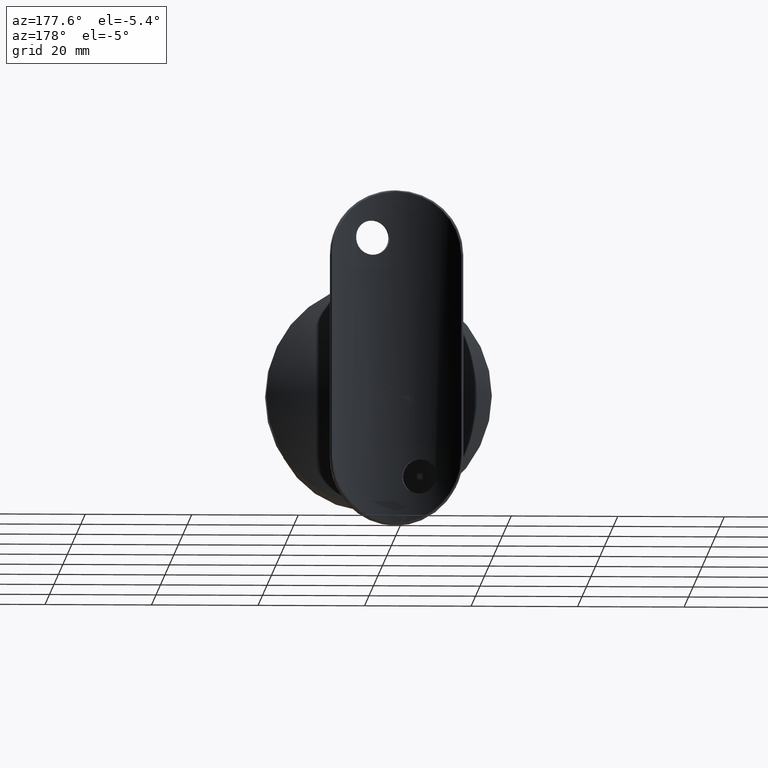
[diagram: clean part render]
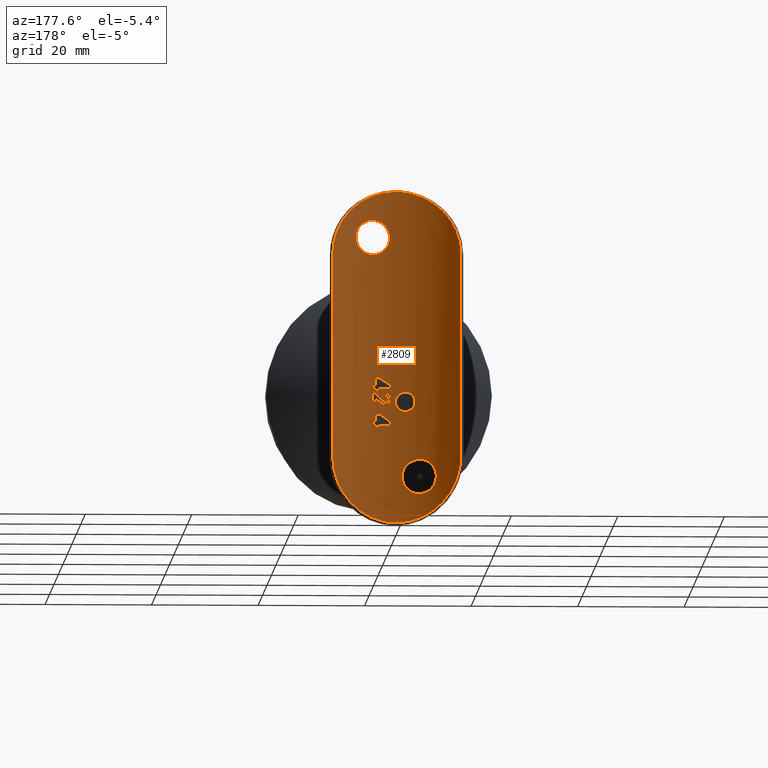
[diagram: same view with one face highlighted and labeled with its STEP entity id]
A machine part, auxiliary view. The second image highlights one B-rep face of the part: STEP entity #2809.
In plain terms, the highlighted cylindrical surface (partial cylindrical patch) has radius 21.2 mm, axis along (-0, -0, -1).
Its self-contained STEP definition (entity closure, byte-faithful):
#9 = CIRCLE ( 'NONE', #16471, 21.20000000000000284 ) ;
#11 = CARTESIAN_POINT ( 'NONE',  ( 11.94909103056784438, 84.18730415961455549, 20.62256453510086018 ) ) ;
#41 = VECTOR ( 'NONE', #26042, 1000.000000000000000 ) ;
#82 = CARTESIAN_POINT ( 'NONE',  ( -2.889333347663131768, 80.69776784001012970, -9.832389970871211915 ) ) ;
#97 = CARTESIAN_POINT ( 'NONE',  ( 1.985791001470410322, 80.59267151769189752, 20.34964298086534740 ) ) ;
#101 = CARTESIAN_POINT ( 'NONE',  ( 9.358327556885175618E-16, 80.49999999999998579, 31.19999999999999929 ) ) ;
#167 = CARTESIAN_POINT ( 'NONE',  ( -12.02976744186046609, 84.24363453365060650, 19.82054122578302824 ) ) ;
#204 = CARTESIAN_POINT ( 'NONE',  ( 0.08661781819191471943, 80.50017671950553222, -8.558204281118898749 ) ) ;
#223 = CARTESIAN_POINT ( 'NONE',  ( -3.986958835414535773, 80.87723920973502345, -19.27153942832347155 ) ) ;
#227 = CARTESIAN_POINT ( 'NONE',  ( -7.990291162705730699, 82.06081492642616126, -28.12853539702011929 ) ) ;
#229 = CARTESIAN_POINT ( 'NONE',  ( 4.084935897435896912, 80.89727665150930136, -10.36217948717949078 ) ) ;
#279 = VERTEX_POINT ( 'NONE', #12073 ) ;
#280 = ORIENTED_EDGE ( 'NONE', *, *, #15538, .F. ) ;
#304 = CARTESIAN_POINT ( 'NONE',  ( 0.07979305312553210128, 80.50013898289424219, -8.677485588593787824 ) ) ;
#312 = CARTESIAN_POINT ( 'NONE',  ( 0.9102564102564094650, 80.51955068305707641, -7.876001602564103088 ) ) ;
#323 = CARTESIAN_POINT ( 'NONE',  ( -12.02976744186046432, 84.24363453365063492, -19.00000000000000355 ) ) ;
#337 = CARTESIAN_POINT ( 'NONE',  ( 11.24921019784549969, 83.72985278299474032, -23.34093573332405924 ) ) ;
#378 = CARTESIAN_POINT ( 'NONE',  ( 5.083333333333333037, 81.11846161672498567, -9.790064102564103976 ) ) ;
#419 = CARTESIAN_POINT ( 'NONE',  ( 11.71391088352524257, 84.02987874713262784, -21.80623066708914948 ) ) ;
#425 = CARTESIAN_POINT ( 'NONE',  ( -1.851809839328822926, 80.58072010962408172, -10.24721929407085419 ) ) ;
#430 = EDGE_CURVE ( 'NONE', #4880, #21523, #20155, .T. ) ;
#432 = CARTESIAN_POINT ( 'NONE',  ( -8.817994152601983160, 82.41865945261457682, 27.30772441096938863 ) ) ;
#452 = CARTESIAN_POINT ( 'NONE',  ( 1.538461538461538103, 80.55589594958738076, -7.840244391025642301 ) ) ;
#472 = CARTESIAN_POINT ( 'NONE',  ( -0.04422693363965806562, 80.50000943702032430, -7.734957992729711407 ) ) ;
#580 = CARTESIAN_POINT ( 'NONE',  ( 11.94901741465891121, 84.18724590656850637, -20.62412866974750258 ) ) ;
#640 = CARTESIAN_POINT ( 'NONE',  ( 0.08974358974358974395, 80.50018995160331770, -8.438301282051282826 ) ) ;
#679 = CARTESIAN_POINT ( 'NONE',  ( -0.8200414072213414451, 80.49999999999995737, 31.19999999999999574 ) ) ;
#820 = CARTESIAN_POINT ( 'NONE',  ( -0.8522078895696471035, 80.51689721494030039, -6.837899072455237537 ) ) ;
#895 = CARTESIAN_POINT ( 'NONE',  ( 4.084935897435896912, 80.89727665150930136, -10.36217948717949078 ) ) ;
#929 = VECTOR ( 'NONE', #13443, 1000.000000000000000 ) ;
#966 = CARTESIAN_POINT ( 'NONE',  ( -1.878300953665520412, 80.58302914465710387, -6.617149702830120717 ) ) ;
#1030 = AXIS2_PLACEMENT_3D ( 'NONE', #14440, #2548, #14527 ) ;
#1042 = CARTESIAN_POINT ( 'NONE',  ( -3.132810475532015637, 80.73257772584028658, -7.219368739384345979 ) ) ;
#1092 = CARTESIAN_POINT ( 'NONE',  ( 7.223887158229819860, 81.76856395322742799, 21.06161435289827466 ) ) ;
#1123 = CARTESIAN_POINT ( 'NONE',  ( -3.575302249504780150, 80.80365470355026503, -8.182472773712030190 ) ) ;
#1134 = ORIENTED_EDGE ( 'NONE', *, *, #10066, .F. ) ;
#1176 = ORIENTED_EDGE ( 'NONE', *, *, #14407, .F. ) ;
#1286 = LINE ( 'NONE', #15697, #41 ) ;
#1305 = CARTESIAN_POINT ( 'NONE',  ( -3.238481570512820706, 80.74881299025160786, -9.466145833333333925 ) ) ;
#1307 = ORIENTED_EDGE ( 'NONE', *, *, #13775, .F. ) ;
#1385 = EDGE_CURVE ( 'NONE', #279, #3953, #10875, .T. ) ;
#1444 = CARTESIAN_POINT ( 'NONE',  ( -1.737379807692307931, 80.57131070312632914, -10.25000000000000000 ) ) ;
#1451 = CARTESIAN_POINT ( 'NONE',  ( 3.146133814102563875, 80.73474679323520320, -10.72115384615384492 ) ) ;
#1512 = CARTESIAN_POINT ( 'NONE',  ( 0.000000000000000000, 101.6999999999999886, -13.14423076923077005 ) ) ;
#1532 =( BOUNDED_CURVE ( )  B_SPLINE_CURVE ( 3, ( #6388, #12469, #4606, #12385 ),
 .UNSPECIFIED., .F., .F. ) 
 B_SPLINE_CURVE_WITH_KNOTS ( ( 4, 4 ),
 ( 4.699556776500005917, 4.722806780400019555 ),
 .UNSPECIFIED. ) 
 CURVE ( )  GEOMETRIC_REPRESENTATION_ITEM ( )  RATIONAL_B_SPLINE_CURVE ( ( 1.000000000000000000, 0.9999549536171905562, 0.9999549536171905562, 1.000000000000000000 ) ) 
 REPRESENTATION_ITEM ( '' )  );
#1553 = CARTESIAN_POINT ( 'NONE',  ( 1.959835737179486781, 80.59078296375550110, -8.926282051282052876 ) ) ;
#1588 = B_SPLINE_CURVE_WITH_KNOTS ( 'NONE', 3,
 ( #20666, #8597, #10864, #16950, #18656, #8765, #14657, #10954, #10705, #22697, #24970, #22877 ),
 .UNSPECIFIED., .F., .F.,
 ( 4, 2, 2, 2, 2, 4 ),
 ( 0.000000000000000000, 0.0004423551664281099162, 0.0008847103328562198324, 0.001327065499284329694, 0.001548243082498383921, 0.001769420665712438147 ),
 .UNSPECIFIED. ) ;
#1594 = CARTESIAN_POINT ( 'NONE',  ( -6.771013581971073059, 81.60980197622880894, -20.34964298086536161 ) ) ;
#1599 = EDGE_CURVE ( 'NONE', #6534, #21701, #24643, .T. ) ;
#1635 = CARTESIAN_POINT ( 'NONE',  ( 0.000000000000000000, 101.6999999999999886, -8.971153846153850253 ) ) ;
#1644 = EDGE_CURVE ( 'NONE', #6339, #20012, #19933, .T. ) ;
#1662 = EDGE_LOOP ( 'NONE', ( #2886 ) ) ;
#1677 = CARTESIAN_POINT ( 'NONE',  ( -4.615179922208732854, 81.00733813690520435, -19.24982116824088862 ) ) ;
#1720 = EDGE_CURVE ( 'NONE', #17677, #18972, #16514, .T. ) ;
#1728 = VERTEX_POINT ( 'NONE', #16229 ) ;
#1786 = ORIENTED_EDGE ( 'NONE', *, *, #9294, .F. ) ;
#1832 = CARTESIAN_POINT ( 'NONE',  ( 3.078826121794871362, 80.72475674248914856, -7.674078525641026438 ) ) ;
#1859 = CARTESIAN_POINT ( 'NONE',  ( 3.198717948717948012, 80.74270524412679606, -6.323717948717950676 ) ) ;
#1866 = CARTESIAN_POINT ( 'NONE',  ( 3.782051282051281493, 80.84008417802375845, -6.009615384615384137 ) ) ;
#1919 = EDGE_CURVE ( 'NONE', #18389, #3026, #22350, .T. ) ;
#1980 = CARTESIAN_POINT ( 'NONE',  ( -5.230858638769722013, 81.15438767725687796, -25.64554539240574371 ) ) ;
#2013 = CARTESIAN_POINT ( 'NONE',  ( 7.990291162705728922, 82.06081492642616126, 28.12853539702011574 ) ) ;
#2026 = CARTESIAN_POINT ( 'NONE',  ( 3.916666666666666519, 80.86494007154712449, -7.793269230769231726 ) ) ;
#2054 = CARTESIAN_POINT ( 'NONE',  ( -7.534605570928717633, 81.88410438838225502, -22.50000000000000000 ) ) ;
#2084 = CARTESIAN_POINT ( 'NONE',  ( -2.931752490126057875, 80.70365122878045838, -9.794047098519911287 ) ) ;
#2094 = CARTESIAN_POINT ( 'NONE',  ( 9.084480890637937733, 82.53595211995671832, 27.03528842286181089 ) ) ;
#2119 = DIRECTION ( 'NONE',  ( -0.000000000000000000, -0.000000000000000000, -1.000000000000000000 ) ) ;
#2129 = CARTESIAN_POINT ( 'NONE',  ( -1.497633281585948106, 80.55263336478373049, -10.24044342729142798 ) ) ;
#2148 = CARTESIAN_POINT ( 'NONE',  ( -1.282585556259018933, 80.53879125251420135, -23.34619478914777702 ) ) ;
#2174 = CARTESIAN_POINT ( 'NONE',  ( -2.509736259972586758, 80.64881561535405297, -10.08453684725938970 ) ) ;
#2181 = AXIS2_PLACEMENT_3D ( 'NONE', #1635, #9456, #5683 ) ;
#2228 = CARTESIAN_POINT ( 'NONE',  ( 4.007661340891403690, 80.88210259930953328, -10.21276644733515049 ) ) ;
#2232 = CARTESIAN_POINT ( 'NONE',  ( -1.847291198034526127, 80.58029874248622093, -20.51748401256677568 ) ) ;
#2242 = VERTEX_POINT ( 'NONE', #24323 ) ;
#2270 = CARTESIAN_POINT ( 'NONE',  ( 11.71492132494384997, 84.03055062080204607, 21.80174323233595146 ) ) ;
#2280 = CARTESIAN_POINT ( 'NONE',  ( 6.773644985992644862, 81.61067582038306512, 24.64747166983826432 ) ) ;
#2291 = CARTESIAN_POINT ( 'NONE',  ( 1.547088917792986740, 80.55651391127662464, -7.961244162094463839 ) ) ;
#2303 = CARTESIAN_POINT ( 'NONE',  ( 0.002445387413698294193, 80.49994964214887716, -9.027183710404775852 ) ) ;
#2351 = CARTESIAN_POINT ( 'NONE',  ( 1.509310193262136890, 80.55363434662302780, 23.94222196971237793 ) ) ;
#2359 = DIRECTION ( 'NONE',  ( -1.000000000000000000, 0.000000000000000000, 0.000000000000000000 ) ) ;
#2364 = CARTESIAN_POINT ( 'NONE',  ( 1.881550381822769236, 80.58363906891975148, -8.286456979039080295 ) ) ;
#2365 = CARTESIAN_POINT ( 'NONE',  ( -3.587478840707481798, 80.80574239538609049, -8.515164991492177649 ) ) ;
#2388 = ORIENTED_EDGE ( 'NONE', *, *, #4158, .F. ) ;
#2410 = CARTESIAN_POINT ( 'NONE',  ( 3.782051282051281493, 80.84008417802375845, 31.50000000000000000 ) ) ;
#2413 = CARTESIAN_POINT ( 'NONE',  ( 5.430176229254984221, 81.19362595800906490, -29.91590705283388374 ) ) ;
#2446 = VERTEX_POINT ( 'NONE', #4502 ) ;
#2448 = ORIENTED_EDGE ( 'NONE', *, *, #16065, .F. ) ;
#2456 = CARTESIAN_POINT ( 'NONE',  ( 1.714144182014358586, 80.56936708133119396, -8.212794204598402814 ) ) ;
#2461 = EDGE_LOOP ( 'NONE', ( #2388, #280, #3691, #14391, #17548, #24958, #2510, #12573, #6529, #19278, #1786, #13384 ) ) ;
#2467 = ORIENTED_EDGE ( 'NONE', *, *, #4667, .F. ) ;
#2478 = CARTESIAN_POINT ( 'NONE',  ( -0.01167304215873758190, 80.49998713724392019, -7.819246874768693623 ) ) ;
#2479 = CARTESIAN_POINT ( 'NONE',  ( -1.640352434579407381, 80.56322449253525519, -6.618568153494760686 ) ) ;
#2505 = CARTESIAN_POINT ( 'NONE',  ( 11.38287231922420872, 83.81454586136401019, -22.96727539065720336 ) ) ;
#2510 = ORIENTED_EDGE ( 'NONE', *, *, #4911, .F. ) ;
#2548 = DIRECTION ( 'NONE',  ( 0.000000000000000000, -0.000000000000000000, -1.000000000000000000 ) ) ;
#2559 = CARTESIAN_POINT ( 'NONE',  ( 0.05898331766885131500, 80.50007844276478863, -8.080710147280857569 ) ) ;
#2560 = CARTESIAN_POINT ( 'NONE',  ( -3.397934882648576682, 80.77346011943185999, -9.601482124690852160 ) ) ;
#2587 = CARTESIAN_POINT ( 'NONE',  ( 2.802401827358697251, 80.68231210448695379, -30.87132654264275544 ) ) ;
#2646 = CARTESIAN_POINT ( 'NONE',  ( -7.534605570928717633, 81.88410438838226924, -22.50000000000000000 ) ) ;
#2676 = B_SPLINE_CURVE_WITH_KNOTS ( 'NONE', 3,
 ( #5251, #7275, #25351, #21198, #23248, #9300, #11241, #25256, #2365, #20780 ),
 .UNSPECIFIED., .F., .F.,
 ( 4, 2, 2, 2, 4 ),
 ( 0.000000000000000000, 0.0002816837719506241574, 0.0005633675439012483148, 0.0008450513158518725264, 0.001126735087802496630 ),
 .UNSPECIFIED. ) ;
#2695 = CARTESIAN_POINT ( 'NONE',  ( -3.494852701738290879, 80.78999489480564478, -7.833225686614344596 ) ) ;
#2699 = CARTESIAN_POINT ( 'NONE',  ( 5.083333333333333037, 81.11846161672498567, -9.790064102564103976 ) ) ;
#2794 = CARTESIAN_POINT ( 'NONE',  ( 9.358327556885175618E-16, 80.49999999999998579, 31.19999999999999929 ) ) ;
#2809 = ADVANCED_FACE ( 'NONE', ( #4224, #19588, #14325, #13059, #17753, #21805, #14022, #8649 ), #5157, .F. ) ;
#2822 = ORIENTED_EDGE ( 'NONE', *, *, #9164, .F. ) ;
#2824 = CARTESIAN_POINT ( 'NONE',  ( -3.715945512820513219, 80.82820685839975283, -9.871394230769231726 ) ) ;
#2828 = EDGE_CURVE ( 'NONE', #18026, #11945, #26013, .T. ) ;
#2862 = ORIENTED_EDGE ( 'NONE', *, *, #13054, .F. ) ;
#2886 = ORIENTED_EDGE ( 'NONE', *, *, #16642, .T. ) ;
#2900 = CARTESIAN_POINT ( 'NONE',  ( 3.146133814102563875, 80.73474679323520320, -3.900641025641027326 ) ) ;
#2926 = DIRECTION ( 'NONE',  ( 0.000000000000000000, 0.000000000000000000, 1.000000000000000000 ) ) ;
#2962 = CARTESIAN_POINT ( 'NONE',  ( 0.000000000000000000, 101.6999999999999886, -12.83012820512820262 ) ) ;
#2984 =( BOUNDED_CURVE ( )  B_SPLINE_CURVE ( 3, ( #12879, #20882, #2560, #14698 ),
 .UNSPECIFIED., .F., .T. ) 
 B_SPLINE_CURVE_WITH_KNOTS ( ( 4, 4 ),
 ( 1.394605707104340953, 1.417437327388274548 ),
 .UNSPECIFIED. ) 
 CURVE ( )  GEOMETRIC_REPRESENTATION_ITEM ( )  RATIONAL_B_SPLINE_CURVE ( ( 1.000000000000000000, 0.9999565602313623680, 0.9999565602313623680, 1.000000000000000000 ) ) 
 REPRESENTATION_ITEM ( '' )  );
#2991 = CARTESIAN_POINT ( 'NONE',  ( -3.715945512820513219, 80.82820685839975283, -9.871394230769231726 ) ) ;
#3023 = VECTOR ( 'NONE', #6929, 1000.000000000000000 ) ;
#3026 = VERTEX_POINT ( 'NONE', #16772 ) ;
#3069 = VERTEX_POINT ( 'NONE', #11258 ) ;
#3173 = VECTOR ( 'NONE', #16472, 1000.000000000000000 ) ;
#3296 = CARTESIAN_POINT ( 'NONE',  ( 0.9575747216116412552, 80.52162244998439178, -8.218037780562763572 ) ) ;
#3371 = ORIENTED_EDGE ( 'NONE', *, *, #15105, .F. ) ;
#3387 = LINE ( 'NONE', #10137, #12859 ) ;
#3403 = DIRECTION ( 'NONE',  ( -1.000000000000000000, 0.000000000000000000, 0.000000000000000000 ) ) ;
#3410 = CARTESIAN_POINT ( 'NONE',  ( 0.9102564102564094650, 80.51955068305707641, 31.50000000000000000 ) ) ;
#3536 = DIRECTION ( 'NONE',  ( -0.000000000000000000, -0.000000000000000000, -1.000000000000000000 ) ) ;
#3599 =( BOUNDED_CURVE ( )  B_SPLINE_CURVE ( 3, ( #2026, #9929, #21847, #8086 ),
 .UNSPECIFIED., .F., .T. ) 
 B_SPLINE_CURVE_WITH_KNOTS ( ( 4, 4 ),
 ( 4.526573103001068077, 4.546626332162765571 ),
 .UNSPECIFIED. ) 
 CURVE ( )  GEOMETRIC_REPRESENTATION_ITEM ( )  RATIONAL_B_SPLINE_CURVE ( ( 1.000000000000000000, 0.9999664892807614835, 0.9999664892807614835, 1.000000000000000000 ) ) 
 REPRESENTATION_ITEM ( '' )  );
#3608 = CARTESIAN_POINT ( 'NONE',  ( -7.435108791666660721, 81.84651259556549974, -21.65253716092697900 ) ) ;
#3671 = CARTESIAN_POINT ( 'NONE',  ( 1.198009188643544443, 80.53383410142771481, 22.07246211263116464 ) ) ;
#3691 = ORIENTED_EDGE ( 'NONE', *, *, #7995, .F. ) ;
#3703 = DIRECTION ( 'NONE',  ( 1.000000000000000000, 0.000000000000000000, 0.000000000000000000 ) ) ;
#3705 = ORIENTED_EDGE ( 'NONE', *, *, #7965, .F. ) ;
#3727 = CARTESIAN_POINT ( 'NONE',  ( -2.800779798076212579, 80.68508152343576967, -25.31982704730343769 ) ) ;
#3778 = CIRCLE ( 'NONE', #10836, 21.20000000000000284 ) ;
#3795 = CARTESIAN_POINT ( 'NONE',  ( 2.413013771760246673, 80.63753759705633684, -8.191855165210983003 ) ) ;
#3930 = CARTESIAN_POINT ( 'NONE',  ( 6.114035651951208017, 81.38939688100865055, 29.53645584613701658 ) ) ;
#3935 = DIRECTION ( 'NONE',  ( 1.000000000000000000, 0.000000000000000000, 0.000000000000000000 ) ) ;
#3953 = VERTEX_POINT ( 'NONE', #2824 ) ;
#3963 = CARTESIAN_POINT ( 'NONE',  ( 3.815799796966921065, 80.84289167449628621, -6.981613750113822903 ) ) ;
#3977 = EDGE_CURVE ( 'NONE', #15094, #5681, #10781, .T. ) ;
#3982 = CARTESIAN_POINT ( 'NONE',  ( -4.201875760889287825, 80.91949685628738109, -25.75011993407064637 ) ) ;
#4010 = CARTESIAN_POINT ( 'NONE',  ( -2.611175418237073220, 80.66120209223117854, -10.03083322058816229 ) ) ;
#4018 = AXIS2_PLACEMENT_3D ( 'NONE', #12037, #23748, #17802 ) ;
#4021 = CARTESIAN_POINT ( 'NONE',  ( 11.25095650159239469, 83.73094036128600237, 23.33641923386397110 ) ) ;
#4067 = CARTESIAN_POINT ( 'NONE',  ( 0.9117639960111034725, 80.51961547344829739, -7.796345083752770577 ) ) ;
#4096 = CARTESIAN_POINT ( 'NONE',  ( -2.974158653846154188, 80.70965983358648543, -9.755709134615386802 ) ) ;
#4142 = VERTEX_POINT ( 'NONE', #2699 ) ;
#4158 = EDGE_CURVE ( 'NONE', #12481, #279, #16687, .T. ) ;
#4159 = CARTESIAN_POINT ( 'NONE',  ( -1.281432233226454942, 80.53872150950653008, -21.65768556441906156 ) ) ;
#4191 = CARTESIAN_POINT ( 'NONE',  ( -8.277802284553542833, 82.18064797393590482, 27.86095438532201385 ) ) ;
#4198 = CARTESIAN_POINT ( 'NONE',  ( 2.283931502310278638, 80.62284823097439812, 24.94799669596733338 ) ) ;
#4224 = FACE_BOUND ( 'NONE', #21902, .T. ) ;
#4235 = CARTESIAN_POINT ( 'NONE',  ( -1.198317767727750560, 80.53385212441004626, -22.92911867522646219 ) ) ;
#4238 = CARTESIAN_POINT ( 'NONE',  ( -9.358327556885201256E-16, 80.49999999999998579, -31.20000000000000284 ) ) ;
#4241 = CARTESIAN_POINT ( 'NONE',  ( 4.500000000000000000, 80.98309868730362382, -12.20192307692307487 ) ) ;
#4261 = CARTESIAN_POINT ( 'NONE',  ( 7.994589161116272713, 82.06258470827350493, -28.12460384736233010 ) ) ;
#4263 =( BOUNDED_CURVE ( )  B_SPLINE_CURVE ( 3, ( #24259, #2228, #22223, #4319 ),
 .UNSPECIFIED., .F., .T. ) 
 B_SPLINE_CURVE_WITH_KNOTS ( ( 4, 4 ),
 ( 1.376897967516781174, 1.388041819511603103 ),
 .UNSPECIFIED. ) 
 CURVE ( )  GEOMETRIC_REPRESENTATION_ITEM ( )  RATIONAL_B_SPLINE_CURVE ( ( 1.000000000000000000, 0.9999896512403341209, 0.9999896512403341209, 1.000000000000000000 ) ) 
 REPRESENTATION_ITEM ( '' )  );
#4319 = CARTESIAN_POINT ( 'NONE',  ( 3.852864583333333037, 80.85304735692770350, -9.913461538461541878 ) ) ;
#4347 = CARTESIAN_POINT ( 'NONE',  ( 9.794257249474538796, 82.89650516004077474, -26.09445500278442509 ) ) ;
#4348 = ORIENTED_EDGE ( 'NONE', *, *, #15950, .F. ) ;
#4351 = CARTESIAN_POINT ( 'NONE',  ( 0.9102564102564094650, 80.51955068305707641, -7.876001602564103088 ) ) ;
#4363 = CARTESIAN_POINT ( 'NONE',  ( -12.02976744186046432, 84.24363453365063492, 19.00000000000000000 ) ) ;
#4367 = CARTESIAN_POINT ( 'NONE',  ( 4.500000000000000000, 80.98309868730362382, -12.83012820512820618 ) ) ;
#4382 = DIRECTION ( 'NONE',  ( 0.000000000000000000, 0.000000000000000000, 1.000000000000000000 ) ) ;
#4406 = CARTESIAN_POINT ( 'NONE',  ( -1.758413461538461675, 80.57305080949259946, -6.615384615384615863 ) ) ;
#4474 = CARTESIAN_POINT ( 'NONE',  ( 1.591153853771242188, 80.55978435499713441, -8.075058425551228325 ) ) ;
#4485 = CARTESIAN_POINT ( 'NONE',  ( 5.032197918245495671, 81.10583193107227373, -9.684991331835666628 ) ) ;
#4500 = CARTESIAN_POINT ( 'NONE',  ( -0.8204931685141119146, 80.50000000000001421, -31.20000000000000284 ) ) ;
#4502 = CARTESIAN_POINT ( 'NONE',  ( 3.782051282051281493, 80.84008417802375845, -12.20192307692307665 ) ) ;
#4583 = B_SPLINE_CURVE_WITH_KNOTS ( 'NONE', 3,
 ( #2054, #16144, #10159, #7955, #18133, #7870, #21977, #6107, #9965, #24011, #24195, #12192, #12021, #26044, #1980, #14211, #16053, #3982, #15791, #21884, #17881, #9810, #3727, #23842, #5758, #6025, #11830, #25868, #13865, #5842, #2148, #4235, #18222, #16217, #6199, #4159, #14295, #10240, #8207, #2232, #6286, #16307, #22230, #20201, #24267, #20291, #12283, #223, #18309, #1677, #13653, #25917, #7752, #25758, #7578, #5814, #15670, #1594, #13747, #21775, #23810, #15843, #3608, #17690, #19748, #5646 ),
 .UNSPECIFIED., .T., .F.,
 ( 4, 2, 2, 2, 2, 2, 2, 2, 2, 2, 2, 2, 2, 2, 2, 2, 2, 2, 2, 2, 2, 2, 2, 2, 2, 2, 2, 2, 2, 2, 2, 2, 4 ),
 ( 0.000000000000000000, 0.0006359202025225540620, 0.001271840405045108124, 0.001907760607567662078, 0.002543680810090216248, 0.003179601012612770419, 0.003815521215135324155, 0.004451441417657878326, 0.005087361620180432496, 0.005723281822702986667, 0.006359202025225540837, 0.006995122227748096742, 0.007631042430270651780, 0.008266962632793207685, 0.008902882835315761856, 0.009538803037838317761, 0.01017472324036087367, 0.01081064344288342957, 0.01144656364540598721, 0.01208248384792854312, 0.01271840405045109729, 0.01335432425297365666, 0.01399024445549621083, 0.01462616465801876847, 0.01526208486054132438, 0.01589800506306388028, 0.01653392526558643619, 0.01716984546810899209, 0.01780576567063154800, 0.01844168587315410737, 0.01907760607567666328, 0.01971352627819921918, 0.02034944648072177509 ),
 .UNSPECIFIED. ) ;
#4585 = CIRCLE ( 'NONE', #1030, 21.20000000000000284 ) ;
#4586 = CARTESIAN_POINT ( 'NONE',  ( -4.342653968270592024, 80.94621169497803237, -30.38435726816690519 ) ) ;
#4606 = CARTESIAN_POINT ( 'NONE',  ( -0.05655855302045675881, 80.49943876107981566, -7.280049261497438806 ) ) ;
#4667 = EDGE_CURVE ( 'NONE', #19907, #13131, #9349, .T. ) ;
#4675 = CARTESIAN_POINT ( 'NONE',  ( -3.552899527883971231, 80.79967094573963493, -10.07601927776694950 ) ) ;
#4678 = CIRCLE ( 'NONE', #5032, 21.20000000000000284 ) ;
#4682 = EDGE_CURVE ( 'NONE', #15361, #4880, #2676, .T. ) ;
#4690 = CARTESIAN_POINT ( 'NONE',  ( 4.827111689501504266, 81.05581921167701864, 19.27153942832345734 ) ) ;
#4771 = EDGE_CURVE ( 'NONE', #24594, #14468, #9587, .T. ) ;
#4827 = VERTEX_POINT ( 'NONE', #1866 ) ;
#4857 = VERTEX_POINT ( 'NONE', #14529 ) ;
#4880 = VERTEX_POINT ( 'NONE', #12691 ) ;
#4911 = EDGE_CURVE ( 'NONE', #15923, #16334, #18282, .T. ) ;
#4926 = VECTOR ( 'NONE', #22092, 1000.000000000000000 ) ;
#4954 = CARTESIAN_POINT ( 'NONE',  ( 2.020780987124757289, 80.59640974882088926, -7.366516148342766357 ) ) ;
#5003 = ORIENTED_EDGE ( 'NONE', *, *, #19633, .F. ) ;
#5032 = AXIS2_PLACEMENT_3D ( 'NONE', #13993, #16008, #3935 ) ;
#5059 = LINE ( 'NONE', #24346, #3173 ) ;
#5067 = CARTESIAN_POINT ( 'NONE',  ( -2.871070132679320430, 80.69507207373941071, -6.979498918438010513 ) ) ;
#5148 = CARTESIAN_POINT ( 'NONE',  ( 1.622606989322856075, 80.56208943854440463, -8.870748874578570309 ) ) ;
#5157 = CYLINDRICAL_SURFACE ( 'NONE', #25036, 21.20000000000000284 ) ;
#5187 = ORIENTED_EDGE ( 'NONE', *, *, #1644, .F. ) ;
#5251 = CARTESIAN_POINT ( 'NONE',  ( -3.238481570512820706, 80.74881299025160786, -9.466145833333333925 ) ) ;
#5310 = ORIENTED_EDGE ( 'NONE', *, *, #12716, .F. ) ;
#5346 = CARTESIAN_POINT ( 'NONE',  ( 4.929787660256409687, 81.08114470624558123, -9.474559294871797377 ) ) ;
#5349 = B_SPLINE_CURVE_WITH_KNOTS ( 'NONE', 3,
 ( #4238, #4500, #10579, #12367, #16468, #8288, #4586, #18386, #10418, #8479, #20626, #227, #22490, #14551, #6292, #22576, #20382, #16554, #8382, #20294, #22401, #10494, #6536, #323 ),
 .UNSPECIFIED., .F., .F.,
 ( 4, 2, 2, 2, 2, 2, 2, 2, 2, 2, 2, 4 ),
 ( 0.000000000000000000, 0.002426753191983640600, 0.003640129787975461984, 0.004853506383967282935, 0.007280259575950925703, 0.008493636171942743618, 0.009707012767934560665, 0.01213376595991818609, 0.01456051915190181151, 0.01577389574789362509, 0.01698727234388543866, 0.01941402553586905541 ),
 .UNSPECIFIED. ) ;
#5539 =( BOUNDED_CURVE ( )  B_SPLINE_CURVE ( 3, ( #15741, #19532, #25628, #9661 ),
 .UNSPECIFIED., .F., .F. ) 
 B_SPLINE_CURVE_WITH_KNOTS ( ( 4, 4 ),
 ( 4.713678780270607049, 4.725221184269373431 ),
 .UNSPECIFIED. ) 
 CURVE ( )  GEOMETRIC_REPRESENTATION_ITEM ( )  RATIONAL_B_SPLINE_CURVE ( ( 1.000000000000000000, 0.9999888977733091266, 0.9999888977733091266, 1.000000000000000000 ) ) 
 REPRESENTATION_ITEM ( '' )  );
#5547 = CIRCLE ( 'NONE', #12372, 21.20000000000000284 ) ;
#5612 = VERTEX_POINT ( 'NONE', #1444 ) ;
#5615 = CARTESIAN_POINT ( 'NONE',  ( 4.198260611571675405, 80.91876619030709605, 25.74987901963590886 ) ) ;
#5646 = CARTESIAN_POINT ( 'NONE',  ( -7.534605570928717633, 81.88410438838225502, -22.50000000000000000 ) ) ;
#5650 = VECTOR ( 'NONE', #7686, 1000.000000000000000 ) ;
#5681 = VERTEX_POINT ( 'NONE', #14746 ) ;
#5683 = DIRECTION ( 'NONE',  ( 1.000000000000000000, 0.000000000000000000, 0.000000000000000000 ) ) ;
#5692 = CARTESIAN_POINT ( 'NONE',  ( 3.198717948717948012, 80.74270524412679606, 31.50000000000000000 ) ) ;
#5710 = CARTESIAN_POINT ( 'NONE',  ( 1.510062909357881011, 80.55368943641158808, 21.05646236502593638 ) ) ;
#5711 = CARTESIAN_POINT ( 'NONE',  ( 7.534682888633033926, 81.88413378692156641, 22.28900412894135385 ) ) ;
#5758 = CARTESIAN_POINT ( 'NONE',  ( -2.286195354599796836, 80.62308079460819954, -24.95019537137528687 ) ) ;
#5814 = CARTESIAN_POINT ( 'NONE',  ( -6.325105506393662758, 81.46477043643587024, -19.91383573750284697 ) ) ;
#5842 = CARTESIAN_POINT ( 'NONE',  ( -1.344782042633638541, 80.54253442879543456, -23.54876038353828704 ) ) ;
#5868 = LINE ( 'NONE', #23326, #15596 ) ;
#5911 = CARTESIAN_POINT ( 'NONE',  ( 2.505948575318411642, 80.64844619083446275, -8.140151484538060700 ) ) ;
#5936 = B_SPLINE_CURVE_WITH_KNOTS ( 'NONE', 3,
 ( #20549, #12646, #580, #419, #22506, #2505, #337, #14396, #8495, #4347, #22595, #25945, #10593, #18402, #4261, #24607, #11943, #14488, #2413, #10355, #14639, #10439, #2587, #21887, #9889, #22415 ),
 .UNSPECIFIED., .F., .F.,
 ( 4, 2, 2, 2, 2, 2, 2, 2, 2, 2, 2, 2, 4 ),
 ( 0.000000000000000000, 0.002425929769446997716, 0.003638894654170488335, 0.004851859538893979820, 0.007277789308340961924, 0.008490754193064451241, 0.009703719077787942293, 0.01091668396251143335, 0.01212964884723492440, 0.01455557861668191691, 0.01576854350140542010, 0.01698150838612891983, 0.01940743815557592622 ),
 .UNSPECIFIED. ) ;
#5939 = ORIENTED_EDGE ( 'NONE', *, *, #10704, .T. ) ;
#5979 = CARTESIAN_POINT ( 'NONE',  ( 4.342653968270592912, 80.94621169497803237, 30.38435726816690163 ) ) ;
#5991 = CIRCLE ( 'NONE', #15558, 21.20000000000000284 ) ;
#6021 = CARTESIAN_POINT ( 'NONE',  ( 2.166666666666666075, 80.61100866433967838, -6.727564102564103088 ) ) ;
#6025 = CARTESIAN_POINT ( 'NONE',  ( -1.983031669841468059, 80.59239952561139830, -24.64747166983827142 ) ) ;
#6107 = CARTESIAN_POINT ( 'NONE',  ( -6.903014186903556393, 81.65498742915235653, -24.48180188292302617 ) ) ;
#6199 = CARTESIAN_POINT ( 'NONE',  ( -1.197293035883259860, 80.53379426286331011, -22.07782879654869035 ) ) ;
#6249 = CARTESIAN_POINT ( 'NONE',  ( 2.447134524565478753, 80.64095693463895032, 25.08241413027235822 ) ) ;
#6286 = CARTESIAN_POINT ( 'NONE',  ( -1.981931968861068372, 80.59230927099565633, -20.35400407447952276 ) ) ;
#6292 = CARTESIAN_POINT ( 'NONE',  ( -9.571910381192269668, 82.77758528732744026, -26.43149116233650275 ) ) ;
#6339 = VERTEX_POINT ( 'NONE', #20100 ) ;
#6363 = CARTESIAN_POINT ( 'NONE',  ( 0.9460967783517492125, 80.52111625491758673, -7.562214438808805284 ) ) ;
#6388 = CARTESIAN_POINT ( 'NONE',  ( 0.2720352564102564430, 80.50174542988803239, -7.001001602564102200 ) ) ;
#6401 = CARTESIAN_POINT ( 'NONE',  ( -10.43606157613780638, 83.24020065547607317, 25.11849907747605926 ) ) ;
#6500 = B_SPLINE_CURVE_WITH_KNOTS ( 'NONE', 3,
 ( #452, #12256, #2291, #4474, #8344, #2456, #6508, #12603, #2364, #20505, #24828, #22899 ),
 .UNSPECIFIED., .F., .F.,
 ( 4, 2, 2, 2, 2, 4 ),
 ( 0.000000000000000000, 0.0001804707410674654885, 0.0003609414821349309771, 0.0005414122232023964656, 0.0006316475937361267163, 0.0007218829642698568584 ),
 .UNSPECIFIED. ) ;
#6508 = CARTESIAN_POINT ( 'NONE',  ( 1.766756002340618581, 80.57366937063380874, -8.245747196379626942 ) ) ;
#6521 = CARTESIAN_POINT ( 'NONE',  ( 3.782051282051281493, 80.84008417802375845, -12.83012820512820262 ) ) ;
#6523 = CARTESIAN_POINT ( 'NONE',  ( -1.289412547032322109, 80.53892577101269978, -6.668578179475374235 ) ) ;
#6529 = ORIENTED_EDGE ( 'NONE', *, *, #430, .F. ) ;
#6534 = VERTEX_POINT ( 'NONE', #17820 ) ;
#6536 = CARTESIAN_POINT ( 'NONE',  ( -12.02976744186047142, 84.24363453365069176, -19.82020734007568308 ) ) ;
#6731 = CARTESIAN_POINT ( 'NONE',  ( 3.782051282051281493, 80.84008417802375845, 31.50000000000000000 ) ) ;
#6759 = CARTESIAN_POINT ( 'NONE',  ( 6.902571909337028799, 81.65483182875749435, 20.51748401256677568 ) ) ;
#6791 = CARTESIAN_POINT ( 'NONE',  ( 1.632254271706061965, 80.56289548574694948, -7.564638403275043999 ) ) ;
#6823 = CARTESIAN_POINT ( 'NONE',  ( -3.586613200367825272, 80.80559312460106014, -8.301222286512240700 ) ) ;
#6870 = VERTEX_POINT ( 'NONE', #4351 ) ;
#6904 = CARTESIAN_POINT ( 'NONE',  ( 9.358327556885175618E-16, 80.49999999999998579, 31.19999999999999929 ) ) ;
#6907 = CARTESIAN_POINT ( 'NONE',  ( 6.328874018911708532, 81.46595374252009947, 19.91688736788462322 ) ) ;
#6916 = CARTESIAN_POINT ( 'NONE',  ( 4.929787660256409687, 81.08114470624558123, -9.474559294871797377 ) ) ;
#6929 = DIRECTION ( 'NONE',  ( -0.000000000000000000, -0.000000000000000000, -1.000000000000000000 ) ) ;
#6960 = CARTESIAN_POINT ( 'NONE',  ( 1.686935136665644208, 80.56713382138296708, -7.511845102955592601 ) ) ;
#7078 = CARTESIAN_POINT ( 'NONE',  ( -2.233094159735546924, 80.61760673492202045, -6.670084467702927178 ) ) ;
#7141 = EDGE_CURVE ( 'NONE', #7142, #21831, #3778, .T. ) ;
#7142 = VERTEX_POINT ( 'NONE', #16960 ) ;
#7168 = EDGE_CURVE ( 'NONE', #13131, #11195, #22307, .T. ) ;
#7244 = B_SPLINE_CURVE_WITH_KNOTS ( 'NONE', 3,
 ( #1553, #13442, #21545, #17549, #5148, #21184, #19255, #19184, #21273, #3296, #15348, #19339, #11324, #25338 ),
 .UNSPECIFIED., .F., .F.,
 ( 4, 2, 2, 2, 2, 2, 4 ),
 ( 0.000000000000000000, 0.0002054630811689661012, 0.0004109261623379322024, 0.0008218523246758668984, 0.001232778487013801594, 0.001438241568182766720, 0.001643704649351731628 ),
 .UNSPECIFIED. ) ;
#7268 = EDGE_CURVE ( 'NONE', #15549, #6870, #7244, .T. ) ;
#7275 = CARTESIAN_POINT ( 'NONE',  ( -3.291820617897208034, 80.75705775088795235, -9.389194065106385878 ) ) ;
#7329 = CARTESIAN_POINT ( 'NONE',  ( -2.974158653846154188, 80.70965983358648543, -9.755709134615386802 ) ) ;
#7429 = VERTEX_POINT ( 'NONE', #12381 ) ;
#7578 = CARTESIAN_POINT ( 'NONE',  ( -5.985565960702419197, 81.36174847025358758, -19.67810498883847004 ) ) ;
#7588 = LINE ( 'NONE', #22671, #23950 ) ;
#7633 = DIRECTION ( 'NONE',  ( 0.000000000000000000, 0.000000000000000000, 1.000000000000000000 ) ) ;
#7658 =( BOUNDED_CURVE ( )  B_SPLINE_CURVE ( 3, ( #9794, #22213, #4485, #378 ),
 .UNSPECIFIED., .F., .T. ) 
 B_SPLINE_CURVE_WITH_KNOTS ( ( 4, 4 ),
 ( 4.947074516930345389, 4.954528084651995457 ),
 .UNSPECIFIED. ) 
 CURVE ( )  GEOMETRIC_REPRESENTATION_ITEM ( )  RATIONAL_B_SPLINE_CURVE ( ( 1.000000000000000000, 0.9999953703660431348, 0.9999953703660431348, 1.000000000000000000 ) ) 
 REPRESENTATION_ITEM ( '' )  );
#7686 = DIRECTION ( 'NONE',  ( 0.000000000000000000, 0.000000000000000000, 1.000000000000000000 ) ) ;
#7721 = CARTESIAN_POINT ( 'NONE',  ( 7.515289853776187634, 81.87672594311673890, 22.07782879654869035 ) ) ;
#7752 = CARTESIAN_POINT ( 'NONE',  ( -5.425966066455468528, 81.20517893394986686, -19.41567170125474107 ) ) ;
#7814 = CARTESIAN_POINT ( 'NONE',  ( 3.379128067510837941, 80.77011008659864899, 19.41567170125473396 ) ) ;
#7870 = CARTESIAN_POINT ( 'NONE',  ( -7.222178307879361547, 81.76794195034031532, -23.94222196971237082 ) ) ;
#7896 = ORIENTED_EDGE ( 'NONE', *, *, #25522, .T. ) ;
#7955 = CARTESIAN_POINT ( 'NONE',  ( -7.436301153031557476, 81.84696052376853004, -23.34223127421757482 ) ) ;
#7965 = EDGE_CURVE ( 'NONE', #11945, #4142, #7658, .T. ) ;
#7985 = CARTESIAN_POINT ( 'NONE',  ( 1.176646166158998419, 80.53267839806687789, 22.50000000000000355 ) ) ;
#7986 = CARTESIAN_POINT ( 'NONE',  ( 10.43442061100085994, 83.23917354459277362, 25.12205622643981684 ) ) ;
#7995 = EDGE_CURVE ( 'NONE', #5681, #5612, #17529, .T. ) ;
#8015 = CARTESIAN_POINT ( 'NONE',  ( 3.078826121794871362, 80.72475674248914856, -7.674078525641026438 ) ) ;
#8027 = CARTESIAN_POINT ( 'NONE',  ( 1.402773059290149060, 80.54611773352205262, -6.930671822620274369 ) ) ;
#8086 = CARTESIAN_POINT ( 'NONE',  ( 3.498096955128204844, 80.79059260302857126, -8.158553685897436125 ) ) ;
#8192 = CARTESIAN_POINT ( 'NONE',  ( 4.181690705128205288, 80.91650984924223167, -6.637820512820513663 ) ) ;
#8207 = CARTESIAN_POINT ( 'NONE',  ( -1.609205754723206594, 80.56082492584135935, -20.87220422761222594 ) ) ;
#8248 = CARTESIAN_POINT ( 'NONE',  ( 11.61784690027768718, 83.96628007009483952, 22.19072169907141401 ) ) ;
#8273 = CARTESIAN_POINT ( 'NONE',  ( -0.5301763698165588012, 80.50646115932785563, -9.809517539854223145 ) ) ;
#8288 = CARTESIAN_POINT ( 'NONE',  ( -3.969338031837762681, 80.87125003659194533, -30.52399500228029083 ) ) ;
#8344 = CARTESIAN_POINT ( 'NONE',  ( 1.626376493171092452, 80.56243066663708419, -8.126725337234807611 ) ) ;
#8358 = CARTESIAN_POINT ( 'NONE',  ( -0.6219787465892221423, 80.50889233806816492, -9.885512186437180659 ) ) ;
#8370 = CARTESIAN_POINT ( 'NONE',  ( 0.9691107202003624854, 80.52213813173800361, -7.484957729513187275 ) ) ;
#8382 = CARTESIAN_POINT ( 'NONE',  ( -11.38511364547577109, 83.81597426667556761, -22.96066238898039558 ) ) ;
#8453 = CARTESIAN_POINT ( 'NONE',  ( -1.617551196778536760, 80.56145737971095855, -10.24691085271196478 ) ) ;
#8479 = CARTESIAN_POINT ( 'NONE',  ( -7.080432487514294770, 81.71443061750852621, -28.87089346863394823 ) ) ;
#8495 = CARTESIAN_POINT ( 'NONE',  ( 10.43606157613780638, 83.24020065547608738, -25.11849907747606281 ) ) ;
#8545 = DIRECTION ( 'NONE',  ( -0.000000000000000000, -0.000000000000000000, -1.000000000000000000 ) ) ;
#8569 = CARTESIAN_POINT ( 'NONE',  ( 1.561578204004947290, 80.55758848846745934, -7.694222186350569537 ) ) ;
#8597 = CARTESIAN_POINT ( 'NONE',  ( 3.387590479149735323, 80.77210511747706789, -8.254776885185396651 ) ) ;
#8616 =( BOUNDED_CURVE ( )  B_SPLINE_CURVE ( 3, ( #19585, #19247, #13519, #1451 ),
 .UNSPECIFIED., .F., .F. ) 
 B_SPLINE_CURVE_WITH_KNOTS ( ( 4, 4 ),
 ( 1.613746153537905181, 1.719749054747145900 ),
 .UNSPECIFIED. ) 
 CURVE ( )  GEOMETRIC_REPRESENTATION_ITEM ( )  RATIONAL_B_SPLINE_CURVE ( ( 1.000000000000000000, 0.9990638345947682186, 0.9990638345947682186, 1.000000000000000000 ) ) 
 REPRESENTATION_ITEM ( '' )  );
#8631 = CARTESIAN_POINT ( 'NONE',  ( 0.08372704062614171050, 80.50016172591504926, -8.258183487152919611 ) ) ;
#8632 = CARTESIAN_POINT ( 'NONE',  ( -0.7015404730464384064, 80.51155110827976102, -6.931846524354116745 ) ) ;
#8649 = FACE_BOUND ( 'NONE', #2461, .T. ) ;
#8654 = LINE ( 'NONE', #10473, #8996 ) ;
#8668 = ORIENTED_EDGE ( 'NONE', *, *, #19287, .T. ) ;
#8704 = CARTESIAN_POINT ( 'NONE',  ( 2.404994214668404240, 80.62352827697145585, -4.382649031042862298 ) ) ;
#8765 = CARTESIAN_POINT ( 'NONE',  ( 2.666590158458970627, 80.66798272373661405, -8.753508244875142452 ) ) ;
#8827 = CARTESIAN_POINT ( 'NONE',  ( 2.093391817100137331, 80.60348046294141966, -7.359032341175742786 ) ) ;
#8862 = CARTESIAN_POINT ( 'NONE',  ( -2.672381824191410793, 80.66887030423954741, -6.848473179821852774 ) ) ;
#8888 = LINE ( 'NONE', #3410, #22059 ) ;
#8939 = CARTESIAN_POINT ( 'NONE',  ( 4.500000000000000000, 80.98309868730362382, -6.637820512820510999 ) ) ;
#8996 = VECTOR ( 'NONE', #8545, 1000.000000000000000 ) ;
#9066 = EDGE_CURVE ( 'NONE', #13264, #22444, #10967, .T. ) ;
#9088 = CARTESIAN_POINT ( 'NONE',  ( 1.176646166158998419, 80.53267839806687789, 22.50000000000000000 ) ) ;
#9129 = DIRECTION ( 'NONE',  ( 1.000000000000000000, 0.000000000000000000, 0.000000000000000000 ) ) ;
#9164 = EDGE_CURVE ( 'NONE', #2242, #24594, #17707, .T. ) ;
#9198 = EDGE_CURVE ( 'NONE', #21523, #15923, #11651, .T. ) ;
#9294 = EDGE_CURVE ( 'NONE', #3953, #15361, #2984, .T. ) ;
#9300 = CARTESIAN_POINT ( 'NONE',  ( -3.530163318194355249, 80.79595959968337127, -8.881770249005542794 ) ) ;
#9308 = CARTESIAN_POINT ( 'NONE',  ( -0.3059473048413753338, 80.50155268580181200, -6.976716831696420762 ) ) ;
#9349 = LINE ( 'NONE', #13109, #3023 ) ;
#9389 = CARTESIAN_POINT ( 'NONE',  ( 0.000000000000000000, 101.6999999999999886, 31.50000000000000000 ) ) ;
#9395 = ORIENTED_EDGE ( 'NONE', *, *, #2828, .F. ) ;
#9456 = DIRECTION ( 'NONE',  ( 0.000000000000000000, -0.000000000000000000, -1.000000000000000000 ) ) ;
#9497 = ORIENTED_EDGE ( 'NONE', *, *, #21079, .F. ) ;
#9587 =( BOUNDED_CURVE ( )  B_SPLINE_CURVE ( 3, ( #8015, #10049, #3963, #8192 ),
 .UNSPECIFIED., .F., .T. ) 
 B_SPLINE_CURVE_WITH_KNOTS ( ( 4, 4 ),
 ( 1.716539381987007618, 1.769347893228472524 ),
 .UNSPECIFIED. ) 
 CURVE ( )  GEOMETRIC_REPRESENTATION_ITEM ( )  RATIONAL_B_SPLINE_CURVE ( ( 1.000000000000000000, 0.9997676185965724827, 0.9997676185965724827, 1.000000000000000000 ) ) 
 REPRESENTATION_ITEM ( '' )  );
#9659 = CARTESIAN_POINT ( 'NONE',  ( 6.484211982502385396, 81.51539677486876201, 24.95019537137531529 ) ) ;
#9661 = CARTESIAN_POINT ( 'NONE',  ( 0.2720352564102564430, 80.50174542988803239, -7.001001602564102200 ) ) ;
#9747 = ORIENTED_EDGE ( 'NONE', *, *, #15367, .F. ) ;
#9762 = CARTESIAN_POINT ( 'NONE',  ( 7.436420780474339409, 81.84700471222785723, 21.65768556441906156 ) ) ;
#9794 = CARTESIAN_POINT ( 'NONE',  ( 4.929787660256409687, 81.08114470624558123, -9.474559294871797377 ) ) ;
#9810 = CARTESIAN_POINT ( 'NONE',  ( -2.989393111997175279, 80.71089697231390403, -25.42144959760615208 ) ) ;
#9842 = CARTESIAN_POINT ( 'NONE',  ( 5.810957579528257533, 81.31099185251414951, 19.58104045018349026 ) ) ;
#9889 = CARTESIAN_POINT ( 'NONE',  ( 0.8200414072213376704, 80.49999999999998579, -31.20000000000000639 ) ) ;
#9929 = CARTESIAN_POINT ( 'NONE',  ( 3.777394255961752823, 80.83875902812955871, -7.914811820345880378 ) ) ;
#9958 = CARTESIAN_POINT ( 'NONE',  ( 1.032566236398992032, 80.52513717006316085, -7.339436820750067980 ) ) ;
#9962 = ORIENTED_EDGE ( 'NONE', *, *, #22498, .F. ) ;
#9965 = CARTESIAN_POINT ( 'NONE',  ( -6.772402815976233725, 81.61027053691510957, -24.64870731527175707 ) ) ;
#10010 = CARTESIAN_POINT ( 'NONE',  ( 10.80003296590865247, 83.45380056184774276, 24.43145049213534037 ) ) ;
#10033 = CARTESIAN_POINT ( 'NONE',  ( -0.2208533653846154465, 80.50115041350123590, -7.419571314102564763 ) ) ;
#10049 = CARTESIAN_POINT ( 'NONE',  ( 3.448092820926001334, 80.77895911550747599, -7.327113375408470297 ) ) ;
#10066 = EDGE_CURVE ( 'NONE', #20879, #19605, #3387, .T. ) ;
#10137 = CARTESIAN_POINT ( 'NONE',  ( 3.782051282051281493, 80.84008417802375845, 31.50000000000000000 ) ) ;
#10159 = CARTESIAN_POINT ( 'NONE',  ( -7.514621829725294688, 81.87647331982527987, -22.92644304022616097 ) ) ;
#10240 = CARTESIAN_POINT ( 'NONE',  ( -1.507496089420419016, 80.55350752248011759, -21.06161435289828532 ) ) ;
#10278 = CARTESIAN_POINT ( 'NONE',  ( 1.624576774105316979, 80.54743476649623801, 31.11578248457320583 ) ) ;
#10288 = AXIS2_PLACEMENT_3D ( 'NONE', #17915, #7633, #15999 ) ;
#10289 = CARTESIAN_POINT ( 'NONE',  ( 4.613587575160535970, 81.00700890392779741, 25.75011993407067123 ) ) ;
#10345 = DIRECTION ( 'NONE',  ( -0.000000000000000000, -0.000000000000000000, -1.000000000000000000 ) ) ;
#10355 = CARTESIAN_POINT ( 'NONE',  ( 4.337402018451465224, 80.94508512934741873, -30.38647447209341479 ) ) ;
#10373 = CARTESIAN_POINT ( 'NONE',  ( 0.8204931685141123587, 80.50000000000000000, 31.19999999999999218 ) ) ;
#10382 = CARTESIAN_POINT ( 'NONE',  ( 3.375433527830895120, 80.76952495057426518, 25.58297637422967696 ) ) ;
#10403 = CARTESIAN_POINT ( 'NONE',  ( -1.737379807692307931, 80.57131070312632914, -10.25000000000000000 ) ) ;
#10418 = CARTESIAN_POINT ( 'NONE',  ( -6.114035651951208905, 81.38939688100865055, -29.53645584613703079 ) ) ;
#10439 = CARTESIAN_POINT ( 'NONE',  ( 3.191571477401495827, 80.73797458026902518, -30.76991313577613241 ) ) ;
#10473 = CARTESIAN_POINT ( 'NONE',  ( 3.782051282051281493, 80.84008417802375845, 31.50000000000000000 ) ) ;
#10494 = CARTESIAN_POINT ( 'NONE',  ( -11.94909103056784616, 84.18730415961456970, -20.62256453510087084 ) ) ;
#10579 = CARTESIAN_POINT ( 'NONE',  ( -1.624576774105316535, 80.54743476649623801, -31.11578248457320228 ) ) ;
#10593 = CARTESIAN_POINT ( 'NONE',  ( 8.817994152601983160, 82.41865945261457682, -27.30772441096939573 ) ) ;
#10610 = CARTESIAN_POINT ( 'NONE',  ( -3.191571477401497159, 80.73797458026902518, 30.76991313577612175 ) ) ;
#10658 = CARTESIAN_POINT ( 'NONE',  ( -0.1231159150647363060, 80.50032079573973931, -7.571734330784695821 ) ) ;
#10666 = VERTEX_POINT ( 'NONE', #895 ) ;
#10676 = CARTESIAN_POINT ( 'NONE',  ( 1.542549550789828805, 80.55619164167524104, -7.766279133308135130 ) ) ;
#10704 = EDGE_CURVE ( 'NONE', #18972, #19175, #5936, .T. ) ;
#10705 = CARTESIAN_POINT ( 'NONE',  ( 2.252457050956533369, 80.61987260747295636, -8.895218583968924619 ) ) ;
#10709 = CARTESIAN_POINT ( 'NONE',  ( 3.782051282051281493, 80.84008417802375845, -13.14423076923077005 ) ) ;
#10728 = EDGE_CURVE ( 'NONE', #23194, #15094, #1532, .T. ) ;
#10781 = B_SPLINE_CURVE_WITH_KNOTS ( 'NONE', 3,
 ( #14536, #20450, #10658, #472, #2478, #20521, #2559, #8631, #12698, #640 ),
 .UNSPECIFIED., .F., .F.,
 ( 4, 2, 2, 2, 4 ),
 ( 0.000000000000000000, 0.0002710544865347931502, 0.0005421089730695863003, 0.0008131634596043846005, 0.001084217946139182792 ),
 .UNSPECIFIED. ) ;
#10813 = CARTESIAN_POINT ( 'NONE',  ( 0.9102564102564094650, 80.51955068305707641, -12.83012820512820262 ) ) ;
#10836 = AXIS2_PLACEMENT_3D ( 'NONE', #24979, #14853, #9129 ) ;
#10861 = CARTESIAN_POINT ( 'NONE',  ( -5.430176229254986886, 81.19362595800909332, 29.91590705283387663 ) ) ;
#10864 = CARTESIAN_POINT ( 'NONE',  ( 3.275555678169712159, 80.75424619047032593, -8.349152638988901032 ) ) ;
#10873 = CARTESIAN_POINT ( 'NONE',  ( -2.347089139267997560, 80.63003777660844662, -6.703324629920364153 ) ) ;
#10875 =( BOUNDED_CURVE ( )  B_SPLINE_CURVE ( 3, ( #25014, #4675, #12873, #2991 ),
 .UNSPECIFIED., .F., .T. ) 
 B_SPLINE_CURVE_WITH_KNOTS ( ( 4, 4 ),
 ( 1.735275338726525840, 1.746986946485452608 ),
 .UNSPECIFIED. ) 
 CURVE ( )  GEOMETRIC_REPRESENTATION_ITEM ( )  RATIONAL_B_SPLINE_CURVE ( ( 1.000000000000000000, 0.9999885698863038019, 0.9999885698863038019, 1.000000000000000000 ) ) 
 REPRESENTATION_ITEM ( '' )  );
#10923 = CARTESIAN_POINT ( 'NONE',  ( 3.782051282051281493, 80.84008417802375845, -3.900641025641027326 ) ) ;
#10952 = CARTESIAN_POINT ( 'NONE',  ( -6.117041182257967336, 81.39016387392021556, 29.53504178652876178 ) ) ;
#10954 = CARTESIAN_POINT ( 'NONE',  ( 2.324348280878069328, 80.62768776687406103, -8.876869897310069035 ) ) ;
#10961 = CARTESIAN_POINT ( 'NONE',  ( -3.589743589743590313, 80.80613149845400756, -8.421474358974359475 ) ) ;
#10967 = CIRCLE ( 'NONE', #20420, 21.20000000000000284 ) ;
#10994 = LINE ( 'NONE', #25506, #5650 ) ;
#11076 = B_SPLINE_CURVE_WITH_KNOTS ( 'NONE', 3,
 ( #4363, #167, #20323, #24467, #14244, #24551, #18414, #16253, #6401, #20407, #12484, #12398, #432, #4191, #18256, #22609, #22694, #10952, #10861, #18911, #18738, #10610, #16584, #14751, #679, #6904 ),
 .UNSPECIFIED., .F., .F.,
 ( 4, 2, 2, 2, 2, 2, 2, 2, 2, 2, 2, 2, 4 ),
 ( 0.000000000000000000, 0.002425929769446992512, 0.003638894654170490503, 0.004851859538893987626, 0.007277789308340984475, 0.008490754193064470323, 0.009703719077787959640, 0.01091668396251144549, 0.01212964884723493481, 0.01455557861668191864, 0.01576854350140542010, 0.01698150838612891983, 0.01940743815557592622 ),
 .UNSPECIFIED. ) ;
#11168 = ORIENTED_EDGE ( 'NONE', *, *, #7168, .F. ) ;
#11195 = VERTEX_POINT ( 'NONE', #6521 ) ;
#11221 = CARTESIAN_POINT ( 'NONE',  ( 5.990441486962597040, 81.36318891545755605, 19.68106559161185487 ) ) ;
#11241 = CARTESIAN_POINT ( 'NONE',  ( -3.552704491501175177, 80.79979616122575692, -8.791506885153660633 ) ) ;
#11258 = CARTESIAN_POINT ( 'NONE',  ( 3.782051282051281493, 80.84008417802375845, -6.323717948717948012 ) ) ;
#11324 = CARTESIAN_POINT ( 'NONE',  ( 0.9122722064309131129, 80.51963731442931760, -7.945291949680622245 ) ) ;
#11371 = VERTEX_POINT ( 'NONE', #10813 ) ;
#11415 = EDGE_LOOP ( 'NONE', ( #9395, #22197, #25473, #3705 ) ) ;
#11526 = EDGE_LOOP ( 'NONE', ( #21943, #9747, #5310, #24735, #12455, #9962, #18680, #22220, #15033, #3371, #19862, #2822, #9497 ) ) ;
#11651 = B_SPLINE_CURVE_WITH_KNOTS ( 'NONE', 3,
 ( #4406, #2479, #18543, #6523, #20522, #20617, #820, #8632, #20709, #18692, #22729, #12699 ),
 .UNSPECIFIED., .F., .F.,
 ( 4, 2, 2, 2, 2, 4 ),
 ( 0.000000000000000000, 0.0003548320498891682296, 0.0007096640997783364591, 0.001064496149667504797, 0.001241912174612088858, 0.001419328199556672701 ),
 .UNSPECIFIED. ) ;
#11667 = ORIENTED_EDGE ( 'NONE', *, *, #25086, .T. ) ;
#11691 = CARTESIAN_POINT ( 'NONE',  ( 7.376996995855980899, 81.82472129850687281, 23.54876038353830481 ) ) ;
#11737 = CARTESIAN_POINT ( 'NONE',  ( 3.498096955128204844, 80.79059260302857126, -8.158553685897436125 ) ) ;
#11774 = CARTESIAN_POINT ( 'NONE',  ( 1.176646166158998641, 80.53267839806689210, 22.28494947357092215 ) ) ;
#11775 = CARTESIAN_POINT ( 'NONE',  ( 5.988897733279385349, 81.36273690994106289, 25.31982704730345191 ) ) ;
#11830 = CARTESIAN_POINT ( 'NONE',  ( -1.848340851562299658, 80.58039503847871288, -24.48369426207513300 ) ) ;
#11876 = CARTESIAN_POINT ( 'NONE',  ( 1.176646166158998197, 80.53267839806687789, 22.71505052642908851 ) ) ;
#11943 = CARTESIAN_POINT ( 'NONE',  ( 7.089171254759698115, 81.71749365084293970, -28.86454189495130507 ) ) ;
#11945 = VERTEX_POINT ( 'NONE', #6916 ) ;
#11980 = CARTESIAN_POINT ( 'NONE',  ( 3.992898388204210836, 80.87837505374865543, 19.27073055686306802 ) ) ;
#12018 = CARTESIAN_POINT ( 'NONE',  ( 1.222435224946747390, 80.53518771827209832, -7.085929977458148343 ) ) ;
#12021 = CARTESIAN_POINT ( 'NONE',  ( -5.807175258894516467, 81.30992759189113883, -25.42078298264445380 ) ) ;
#12037 = CARTESIAN_POINT ( 'NONE',  ( 0.000000000000000000, 101.6999999999999886, -10.72115384615384492 ) ) ;
#12073 = CARTESIAN_POINT ( 'NONE',  ( -3.471254006410256387, 80.78611954650732230, -10.17848557692307843 ) ) ;
#12131 = CARTESIAN_POINT ( 'NONE',  ( -2.754294804351085535, 80.67962479526327968, -9.937000672652780864 ) ) ;
#12141 = CARTESIAN_POINT ( 'NONE',  ( 1.850713517846509948, 80.58059479270478676, 20.51298000962626134 ) ) ;
#12143 = CARTESIAN_POINT ( 'NONE',  ( 3.969338031837766234, 80.87125003659193112, 30.52399500228027662 ) ) ;
#12192 = CARTESIAN_POINT ( 'NONE',  ( -5.988852183918628391, 81.36270883993580583, -25.32001434526535988 ) ) ;
#12223 = CIRCLE ( 'NONE', #10288, 21.20000000000000284 ) ;
#12231 = CARTESIAN_POINT ( 'NONE',  ( 2.807674963407242874, 80.68299432095511747, 30.87008604220468300 ) ) ;
#12256 = CARTESIAN_POINT ( 'NONE',  ( 1.541467175862385686, 80.55611464211409611, -7.901009390932468790 ) ) ;
#12258 = EDGE_CURVE ( 'NONE', #2446, #19907, #9, .T. ) ;
#12283 = CARTESIAN_POINT ( 'NONE',  ( -3.577900023861245060, 80.80306627509337147, -19.35462794771556005 ) ) ;
#12326 = CARTESIAN_POINT ( 'NONE',  ( 5.806090808079774845, 81.30960454985709873, 25.42144959760616985 ) ) ;
#12337 = CARTESIAN_POINT ( 'NONE',  ( 5.230974359147926300, 81.15443807198685988, 19.35462794771554940 ) ) ;
#12342 = CARTESIAN_POINT ( 'NONE',  ( -0.4725560897435898133, 80.50526738215253886, -7.118088942307692513 ) ) ;
#12367 = CARTESIAN_POINT ( 'NONE',  ( -2.807674963407242430, 80.68299432095510326, -30.87008604220468655 ) ) ;
#12372 = AXIS2_PLACEMENT_3D ( 'NONE', #12416, #4382, #2359 ) ;
#12381 = CARTESIAN_POINT ( 'NONE',  ( 3.198717948717948012, 80.74270524412679606, -12.83012820512820618 ) ) ;
#12385 = CARTESIAN_POINT ( 'NONE',  ( -0.2208533653846154465, 80.50115041350123590, -7.419571314102564763 ) ) ;
#12398 = CARTESIAN_POINT ( 'NONE',  ( -9.074971809263109535, 82.53861534344245854, 27.01814610976643394 ) ) ;
#12416 = CARTESIAN_POINT ( 'NONE',  ( 0.000000000000000000, 101.6999999999999886, -6.637820512820510999 ) ) ;
#12455 = ORIENTED_EDGE ( 'NONE', *, *, #20458, .F. ) ;
#12469 = CARTESIAN_POINT ( 'NONE',  ( 0.1077450555277452704, 80.49963710881027623, -7.140519739017671341 ) ) ;
#12481 = VERTEX_POINT ( 'NONE', #7329 ) ;
#12484 = CARTESIAN_POINT ( 'NONE',  ( -9.562906772342122608, 82.77740532170672338, 26.41197638596367980 ) ) ;
#12519 = CARTESIAN_POINT ( 'NONE',  ( 0.08974358974358974395, 80.50018995160331770, -8.438301282051282826 ) ) ;
#12564 = LINE ( 'NONE', #20937, #929 ) ;
#12569 = CARTESIAN_POINT ( 'NONE',  ( -1.758413461538461675, 80.57305080949259946, -6.615384615384615863 ) ) ;
#12573 = ORIENTED_EDGE ( 'NONE', *, *, #9198, .F. ) ;
#12603 = CARTESIAN_POINT ( 'NONE',  ( 1.852248292514089512, 80.58105129460382443, -8.278257124686810187 ) ) ;
#12646 = CARTESIAN_POINT ( 'NONE',  ( 12.02976744186047142, 84.24363453365066334, -19.82054122578303179 ) ) ;
#12691 = CARTESIAN_POINT ( 'NONE',  ( -3.589743589743590313, 80.80613149845400756, -8.421474358974359475 ) ) ;
#12697 = EDGE_CURVE ( 'NONE', #10666, #18026, #4263, .T. ) ;
#12698 = CARTESIAN_POINT ( 'NONE',  ( 0.08803136785908259598, 80.50018270338087234, -8.348059368577571249 ) ) ;
#12699 = CARTESIAN_POINT ( 'NONE',  ( -0.4725560897435898133, 80.50526738215253886, -7.118088942307692513 ) ) ;
#12706 = B_SPLINE_CURVE_WITH_KNOTS ( 'NONE', 3,
 ( #312, #4067, #22316, #6363, #8370, #9958, #22058, #24005, #12018, #8027, #26036, #14027, #16049, #18126, #18037, #6021 ),
 .UNSPECIFIED., .F., .F.,
 ( 4, 2, 2, 2, 2, 2, 2, 4 ),
 ( 0.000000000000000000, 0.0002366125518426471846, 0.0004732251036852943692, 0.0007098376555279415539, 0.0009464502073705887385, 0.001419675311055885059, 0.001656287862898534738, 0.001892900414741184199 ),
 .UNSPECIFIED. ) ;
#12716 = EDGE_CURVE ( 'NONE', #6870, #23727, #12706, .T. ) ;
#12717 = CARTESIAN_POINT ( 'NONE',  ( 1.575469771285759935, 80.55861273914942444, -7.660031482373288902 ) ) ;
#12743 = CARTESIAN_POINT ( 'NONE',  ( 0.9102564102564094650, 80.51955068305707641, -12.17528044871794890 ) ) ;
#12798 = CARTESIAN_POINT ( 'NONE',  ( 1.538461538461538103, 80.55589594958738076, -7.840244391025642301 ) ) ;
#12835 = CARTESIAN_POINT ( 'NONE',  ( 4.181690705128205288, 80.91650984924223167, -6.637820512820513663 ) ) ;
#12837 = CARTESIAN_POINT ( 'NONE',  ( -3.209643209433063138, 80.74426738233307788, -7.312949758326372951 ) ) ;
#12859 = VECTOR ( 'NONE', #2119, 1000.000000000000000 ) ;
#12873 = CARTESIAN_POINT ( 'NONE',  ( -3.634464295648627274, 80.81370021005986359, -9.973654325672626442 ) ) ;
#12879 = CARTESIAN_POINT ( 'NONE',  ( -3.715945512820513219, 80.82820685839975283, -9.871394230769231726 ) ) ;
#12969 = CARTESIAN_POINT ( 'NONE',  ( -0.3607962565867148252, 80.50290110332495885, -9.640745513397515509 ) ) ;
#13034 = CARTESIAN_POINT ( 'NONE',  ( 1.659003375903812749, 80.55172902426890857, -4.867812091437269117 ) ) ;
#13054 = EDGE_CURVE ( 'NONE', #16289, #4827, #4678, .T. ) ;
#13059 = FACE_OUTER_BOUND ( 'NONE', #17823, .T. ) ;
#13087 = CARTESIAN_POINT ( 'NONE',  ( -3.530645736264234724, 80.79605037387112532, -7.949019626369114633 ) ) ;
#13109 = CARTESIAN_POINT ( 'NONE',  ( 4.500000000000000000, 80.98309868730362382, 31.50000000000000000 ) ) ;
#13131 = VERTEX_POINT ( 'NONE', #4367 ) ;
#13189 = DIRECTION ( 'NONE',  ( 1.000000000000000000, 0.000000000000000000, 0.000000000000000000 ) ) ;
#13264 = VERTEX_POINT ( 'NONE', #10709 ) ;
#13384 = ORIENTED_EDGE ( 'NONE', *, *, #1385, .F. ) ;
#13442 = CARTESIAN_POINT ( 'NONE',  ( 1.890825615852756103, 80.58437588092664328, -8.923917782545164101 ) ) ;
#13443 = DIRECTION ( 'NONE',  ( 0.000000000000000000, 0.000000000000000000, 1.000000000000000000 ) ) ;
#13493 = CARTESIAN_POINT ( 'NONE',  ( 4.500000000000000000, 80.98309868730362382, 31.50000000000000000 ) ) ;
#13519 = CARTESIAN_POINT ( 'NONE',  ( 2.404994214668403796, 80.62352827697145585, -11.20316185155567545 ) ) ;
#13627 = CARTESIAN_POINT ( 'NONE',  ( 3.852864583333333037, 80.85304735692770350, -9.913461538461541878 ) ) ;
#13628 = LINE ( 'NONE', #13493, #17397 ) ;
#13653 = CARTESIAN_POINT ( 'NONE',  ( -4.821223648648905069, 81.05444102305320087, -19.27073055686307157 ) ) ;
#13716 = CARTESIAN_POINT ( 'NONE',  ( 7.514330180243065094, 81.87636200627939331, 22.92911867522645863 ) ) ;
#13747 = CARTESIAN_POINT ( 'NONE',  ( -6.899325050146111415, 81.65371030121798412, -20.51298000962627199 ) ) ;
#13775 = EDGE_CURVE ( 'NONE', #19605, #1728, #17865, .T. ) ;
#13782 = CARTESIAN_POINT ( 'NONE',  ( 5.083333333333333037, 81.11846161672498567, -9.790064102564103976 ) ) ;
#13818 = CARTESIAN_POINT ( 'NONE',  ( 1.344789009486440756, 80.54253464788914130, 23.54880535683501819 ) ) ;
#13827 = VECTOR ( 'NONE', #23949, 1000.000000000000000 ) ;
#13849 = ORIENTED_EDGE ( 'NONE', *, *, #9066, .F. ) ;
#13865 = CARTESIAN_POINT ( 'NONE',  ( -1.509188657237292119, 80.55362589624971292, -23.94195963421771012 ) ) ;
#13906 = CARTESIAN_POINT ( 'NONE',  ( 2.452137940075838962, 80.64154576707987587, 19.91383573750283276 ) ) ;
#13907 = CARTESIAN_POINT ( 'NONE',  ( 1.609843772107471649, 80.56087662982595532, 24.12876417025585241 ) ) ;
#13941 = CARTESIAN_POINT ( 'NONE',  ( 2.213967010356786780, 80.61585830677955755, -8.268127935294016240 ) ) ;
#13944 = VERTEX_POINT ( 'NONE', #1859 ) ;
#13988 = CARTESIAN_POINT ( 'NONE',  ( 1.282830956521422205, 80.53880557248842820, 21.65253716092698966 ) ) ;
#13993 = CARTESIAN_POINT ( 'NONE',  ( 0.000000000000000000, 101.6999999999999886, -6.009615384615384137 ) ) ;
#14022 = FACE_BOUND ( 'NONE', #11526, .T. ) ;
#14027 = CARTESIAN_POINT ( 'NONE',  ( 1.773109444528818468, 80.57414350908240408, -6.782134118542034962 ) ) ;
#14080 = CARTESIAN_POINT ( 'NONE',  ( 12.02976744186046965, 84.24363453365062071, 19.82020734007566531 ) ) ;
#14165 = CARTESIAN_POINT ( 'NONE',  ( 8.274046424628084040, 82.17905517621295530, 27.86455705834218577 ) ) ;
#14193 = CARTESIAN_POINT ( 'NONE',  ( -0.9274917338181322135, 80.52001278738337930, -10.07624259898783059 ) ) ;
#14211 = CARTESIAN_POINT ( 'NONE',  ( -4.822985695600516820, 81.05483405745351888, -25.72915833555953569 ) ) ;
#14244 = CARTESIAN_POINT ( 'NONE',  ( -11.61600354134003155, 83.96507080057578776, 22.19760793233636775 ) ) ;
#14247 = CARTESIAN_POINT ( 'NONE',  ( 3.199635054120301803, 80.73920791168401934, 30.76765545715979755 ) ) ;
#14279 = CARTESIAN_POINT ( 'NONE',  ( -0.09009965441057754543, 80.50014096255310392, -9.248320248006175248 ) ) ;
#14295 = CARTESIAN_POINT ( 'NONE',  ( -1.344299231651540083, 80.54250609979519027, -21.45287467744128307 ) ) ;
#14325 = FACE_BOUND ( 'NONE', #14463, .T. ) ;
#14329 = CARTESIAN_POINT ( 'NONE',  ( 7.080432487514295659, 81.71443061750854042, 28.87089346863394823 ) ) ;
#14339 = CARTESIAN_POINT ( 'NONE',  ( 6.326753349257208114, 81.46529322891935010, 25.08477140967278984 ) ) ;
#14360 = CARTESIAN_POINT ( 'NONE',  ( 0.03624664684415737637, 80.50001980527999024, -8.911023466663948511 ) ) ;
#14391 = ORIENTED_EDGE ( 'NONE', *, *, #3977, .F. ) ;
#14396 = CARTESIAN_POINT ( 'NONE',  ( 10.79975789010161691, 83.45366026240341739, -24.43156352375395812 ) ) ;
#14407 = EDGE_CURVE ( 'NONE', #19503, #20879, #12223, .T. ) ;
#14440 = CARTESIAN_POINT ( 'NONE',  ( 0.000000000000000000, 101.6999999999999886, -6.323717948717950676 ) ) ;
#14463 = EDGE_LOOP ( 'NONE', ( #15304 ) ) ;
#14468 = VERTEX_POINT ( 'NONE', #12835 ) ;
#14488 = CARTESIAN_POINT ( 'NONE',  ( 6.117041182257962895, 81.39016387392020135, -29.53504178652876178 ) ) ;
#14491 = CARTESIAN_POINT ( 'NONE',  ( -2.300005575166370608, 80.62486976445492814, -10.16809154188543474 ) ) ;
#14527 = DIRECTION ( 'NONE',  ( 1.000000000000000000, 0.000000000000000000, 0.000000000000000000 ) ) ;
#14529 = CARTESIAN_POINT ( 'NONE',  ( -12.02976744186046432, 84.24363453365063492, -19.00000000000000355 ) ) ;
#14536 = CARTESIAN_POINT ( 'NONE',  ( -0.2208533653846154465, 80.50115041350123590, -7.419571314102564763 ) ) ;
#14547 = ORIENTED_EDGE ( 'NONE', *, *, #23761, .F. ) ;
#14551 = CARTESIAN_POINT ( 'NONE',  ( -9.084480890637939510, 82.53595211995674674, -27.03528842286182154 ) ) ;
#14596 = EDGE_CURVE ( 'NONE', #11195, #13264, #20318, .T. ) ;
#14639 = CARTESIAN_POINT ( 'NONE',  ( 3.961749693882380186, 80.86980130781675769, -30.52668622580569746 ) ) ;
#14657 = CARTESIAN_POINT ( 'NONE',  ( 2.533807713547919338, 80.65149483703312683, -8.812222511688672100 ) ) ;
#14670 = CARTESIAN_POINT ( 'NONE',  ( -3.305861772913224250, 80.75866799563748089, -10.03782053207299185 ) ) ;
#14698 = CARTESIAN_POINT ( 'NONE',  ( -3.238481570512820706, 80.74881299025160786, -9.466145833333333925 ) ) ;
#14746 = CARTESIAN_POINT ( 'NONE',  ( 0.08974358974358974395, 80.50018995160331770, -8.438301282051282826 ) ) ;
#14751 = CARTESIAN_POINT ( 'NONE',  ( -1.622683101061822342, 80.54737506940932690, 31.11588260039523490 ) ) ;
#14769 = LINE ( 'NONE', #2410, #16337 ) ;
#14787 = CARTESIAN_POINT ( 'NONE',  ( 7.127994499414925578, 81.73387968599622866, 20.87220422761221883 ) ) ;
#14853 = DIRECTION ( 'NONE',  ( 0.000000000000000000, -0.000000000000000000, -1.000000000000000000 ) ) ;
#14914 = CARTESIAN_POINT ( 'NONE',  ( 3.916666666666666519, 80.86494007154712449, -8.971153846153850253 ) ) ;
#14929 = CARTESIAN_POINT ( 'NONE',  ( -3.400029706418066233, 80.77436722816783288, -7.613660924767364335 ) ) ;
#15019 = CARTESIAN_POINT ( 'NONE',  ( -3.588338218186005957, 80.80589004371623219, -8.361318955870190806 ) ) ;
#15033 = ORIENTED_EDGE ( 'NONE', *, *, #20800, .F. ) ;
#15094 = VERTEX_POINT ( 'NONE', #10033 ) ;
#15105 = EDGE_CURVE ( 'NONE', #14468, #24823, #5547, .T. ) ;
#15248 = VERTEX_POINT ( 'NONE', #2794 ) ;
#15304 = ORIENTED_EDGE ( 'NONE', *, *, #25274, .F. ) ;
#15348 = CARTESIAN_POINT ( 'NONE',  ( 0.9393887918175478635, 80.52081927529556538, -8.151264847601410679 ) ) ;
#15361 = VERTEX_POINT ( 'NONE', #1305 ) ;
#15367 = EDGE_CURVE ( 'NONE', #23727, #18389, #5868, .T. ) ;
#15459 = CARTESIAN_POINT ( 'NONE',  ( 4.500000000000000000, 80.98309868730362382, -6.009615384615384137 ) ) ;
#15538 = EDGE_CURVE ( 'NONE', #5612, #12481, #18880, .T. ) ;
#15539 = CARTESIAN_POINT ( 'NONE',  ( 4.572828088868573282, 80.99579880002686139, -9.620038911856681807 ) ) ;
#15549 = VERTEX_POINT ( 'NONE', #20150 ) ;
#15558 = AXIS2_PLACEMENT_3D ( 'NONE', #16727, #22571, #16906 ) ;
#15596 = VECTOR ( 'NONE', #21370, 1000.000000000000000 ) ;
#15670 = CARTESIAN_POINT ( 'NONE',  ( -6.484904608311503615, 81.51563244035932598, -20.05066307673473247 ) ) ;
#15697 = CARTESIAN_POINT ( 'NONE',  ( 0.9102564102564094650, 80.51955068305707641, 31.50000000000000000 ) ) ;
#15698 = LINE ( 'NONE', #5692, #13827 ) ;
#15734 = CARTESIAN_POINT ( 'NONE',  ( 0.02734375000000000000, 80.50001763398523735, -6.693910256410256387 ) ) ;
#15738 = CARTESIAN_POINT ( 'NONE',  ( 5.229227462301970775, 81.15398571040316256, 25.64590564005769480 ) ) ;
#15741 = CARTESIAN_POINT ( 'NONE',  ( 0.02734375000000000000, 80.50001763398523735, -6.693910256410256387 ) ) ;
#15791 = CARTESIAN_POINT ( 'NONE',  ( -3.990219770070528860, 80.87785627685398993, -25.72894875071582632 ) ) ;
#15808 = DIRECTION ( 'NONE',  ( 0.000000000000000000, 0.000000000000000000, 1.000000000000000000 ) ) ;
#15821 = CARTESIAN_POINT ( 'NONE',  ( 2.989651955632945945, 80.71093667006743999, 19.57844521820288719 ) ) ;
#15843 = CARTESIAN_POINT ( 'NONE',  ( -7.375631119682162229, 81.82421558709377507, -21.44725779159468360 ) ) ;
#15923 = VERTEX_POINT ( 'NONE', #12342 ) ;
#15926 = B_SPLINE_CURVE_WITH_KNOTS ( 'NONE', 3,
 ( #101, #10373, #10278, #12231, #14247, #12143, #5979, #16002, #3930, #14329, #22094, #2013, #14165, #2094, #19983, #7986, #10010, #4021, #24047, #8248, #2270, #11, #14080, #24296 ),
 .UNSPECIFIED., .F., .F.,
 ( 4, 2, 2, 2, 2, 2, 2, 2, 2, 2, 2, 4 ),
 ( 0.000000000000000000, 0.002426753191983626289, 0.003640129787975438999, 0.004853506383967250842, 0.007280259575950879733, 0.008493636171942688107, 0.009707012767934496481, 0.01213376595991813578, 0.01456051915190177508, 0.01577389574789359386, 0.01698727234388541091, 0.01941402553586905888 ),
 .UNSPECIFIED. ) ;
#15942 = CARTESIAN_POINT ( 'NONE',  ( 2.110953040443915629, 80.60529549569881169, -8.291464603817100709 ) ) ;
#15950 = EDGE_CURVE ( 'NONE', #3069, #13944, #4585, .T. ) ;
#15999 = DIRECTION ( 'NONE',  ( -1.000000000000000000, 0.000000000000000000, 0.000000000000000000 ) ) ;
#16002 = CARTESIAN_POINT ( 'NONE',  ( 5.430773281668050956, 81.19389867492284907, 29.91535897875522210 ) ) ;
#16008 = DIRECTION ( 'NONE',  ( 0.000000000000000000, -0.000000000000000000, -1.000000000000000000 ) ) ;
#16049 = CARTESIAN_POINT ( 'NONE',  ( 1.851322807354617073, 80.58084300221749174, -6.764445280808313754 ) ) ;
#16053 = CARTESIAN_POINT ( 'NONE',  ( -4.617187367026381217, 81.00781182103811773, -25.74987901963589820 ) ) ;
#16065 = EDGE_CURVE ( 'NONE', #20012, #2446, #8654, .T. ) ;
#16144 = CARTESIAN_POINT ( 'NONE',  ( -7.534605570928718521, 81.88410438838225502, -22.71505052642908851 ) ) ;
#16217 = CARTESIAN_POINT ( 'NONE',  ( -1.176563575458276834, 80.53267380702538958, -22.28900412894134320 ) ) ;
#16229 = CARTESIAN_POINT ( 'NONE',  ( 4.500000000000000000, 80.98309868730362382, -5.381410256410257276 ) ) ;
#16253 = CARTESIAN_POINT ( 'NONE',  ( -10.79975789010161691, 83.45366026240340318, 24.43156352375395457 ) ) ;
#16265 = CARTESIAN_POINT ( 'NONE',  ( 1.281559491399003603, 80.53872979820471301, 23.34223127421756772 ) ) ;
#16289 = VERTEX_POINT ( 'NONE', #15459 ) ;
#16307 = CARTESIAN_POINT ( 'NONE',  ( -2.281485689481685064, 80.62258352432205299, -20.05413706812825581 ) ) ;
#16334 = VERTEX_POINT ( 'NONE', #15734 ) ;
#16337 = VECTOR ( 'NONE', #24283, 1000.000000000000000 ) ;
#16354 = CARTESIAN_POINT ( 'NONE',  ( 7.125510274962794988, 81.73299769730901687, 24.13209111030147724 ) ) ;
#16380 = CARTESIAN_POINT ( 'NONE',  ( 2.057651470583413467, 80.60002430890209268, -8.295465841794060324 ) ) ;
#16423 = CARTESIAN_POINT ( 'NONE',  ( 3.146133814102563875, 80.73474679323520320, -3.900641025641027326 ) ) ;
#16468 = CARTESIAN_POINT ( 'NONE',  ( -3.199635054120301358, 80.73920791168403355, -30.76765545715981176 ) ) ;
#16471 = AXIS2_PLACEMENT_3D ( 'NONE', #17643, #15808, #23663 ) ;
#16472 = DIRECTION ( 'NONE',  ( -0.000000000000000000, -0.000000000000000000, -1.000000000000000000 ) ) ;
#16514 = LINE ( 'NONE', #19792, #25930 ) ;
#16554 = CARTESIAN_POINT ( 'NONE',  ( -11.25095650159238936, 83.73094036128594553, -23.33641923386397465 ) ) ;
#16584 = CARTESIAN_POINT ( 'NONE',  ( -2.802401827358695474, 80.68231210448691115, 30.87132654264274123 ) ) ;
#16601 = CARTESIAN_POINT ( 'NONE',  ( -3.471254006410256387, 80.78611954650732230, -10.17848557692307843 ) ) ;
#16642 = EDGE_CURVE ( 'NONE', #20121, #20121, #4583, .T. ) ;
#16687 =( BOUNDED_CURVE ( )  B_SPLINE_CURVE ( 3, ( #16866, #18757, #14670, #16601 ),
 .UNSPECIFIED., .F., .F. ) 
 B_SPLINE_CURVE_WITH_KNOTS ( ( 4, 4 ),
 ( 4.853143793194541367, 4.876867992316318734 ),
 .UNSPECIFIED. ) 
 CURVE ( )  GEOMETRIC_REPRESENTATION_ITEM ( )  RATIONAL_B_SPLINE_CURVE ( ( 1.000000000000000000, 0.9999530974146426665, 0.9999530974146426665, 1.000000000000000000 ) ) 
 REPRESENTATION_ITEM ( '' )  );
#16727 = CARTESIAN_POINT ( 'NONE',  ( 0.000000000000000000, 101.6999999999999886, -12.83012820512820262 ) ) ;
#16772 = CARTESIAN_POINT ( 'NONE',  ( 1.538461538461538103, 80.55589594958738076, -7.840244391025642301 ) ) ;
#16774 = CARTESIAN_POINT ( 'NONE',  ( -1.997503179651695326, 80.59398198719304673, -6.625302451040379736 ) ) ;
#16851 = CARTESIAN_POINT ( 'NONE',  ( 3.782051282051281493, 80.84008417802375845, -5.381410256410256387 ) ) ;
#16866 = CARTESIAN_POINT ( 'NONE',  ( -2.974158653846154188, 80.70965983358648543, -9.755709134615386802 ) ) ;
#16906 = DIRECTION ( 'NONE',  ( 1.000000000000000000, 0.000000000000000000, 0.000000000000000000 ) ) ;
#16919 = CARTESIAN_POINT ( 'NONE',  ( 0.000000000000000000, 101.6999999999999886, -5.381410256410257276 ) ) ;
#16950 = CARTESIAN_POINT ( 'NONE',  ( 3.042663306619415753, 80.71914997783053991, -8.526644317403331286 ) ) ;
#16960 = CARTESIAN_POINT ( 'NONE',  ( 3.198717948717948012, 80.74270524412679606, -6.009615384615384137 ) ) ;
#17085 = ORIENTED_EDGE ( 'NONE', *, *, #24293, .F. ) ;
#17114 = CARTESIAN_POINT ( 'NONE',  ( -2.963725763018014270, 80.70801038728924937, -7.052969700247721185 ) ) ;
#17314 = CARTESIAN_POINT ( 'NONE',  ( -0.1393063024274250883, 80.49980268864743493, -6.835317383645313605 ) ) ;
#17394 = DIRECTION ( 'NONE',  ( -0.000000000000000000, -0.000000000000000000, -1.000000000000000000 ) ) ;
#17397 = VECTOR ( 'NONE', #3536, 1000.000000000000000 ) ;
#17529 = B_SPLINE_CURVE_WITH_KNOTS ( 'NONE', 3,
 ( #12519, #204, #304, #14360, #2303, #14279, #20270, #20362, #12969, #8273, #8358, #24931, #14193, #22380, #18534, #2129, #8453, #10403 ),
 .UNSPECIFIED., .F., .F.,
 ( 4, 2, 2, 2, 2, 2, 2, 2, 4 ),
 ( 0.000000000000000000, 0.0003562880275754062203, 0.0007125760551508124405, 0.001068864082726218769, 0.001425152110301624881, 0.001781440137877030993, 0.002137728165452437538, 0.002494016193027843650, 0.002850304220603249762 ),
 .UNSPECIFIED. ) ;
#17548 = ORIENTED_EDGE ( 'NONE', *, *, #10728, .F. ) ;
#17549 = CARTESIAN_POINT ( 'NONE',  ( 1.688600825075889267, 80.56725016504017844, -8.891216223073882929 ) ) ;
#17643 = CARTESIAN_POINT ( 'NONE',  ( 0.000000000000000000, 101.6999999999999886, -12.20192307692307487 ) ) ;
#17677 = VERTEX_POINT ( 'NONE', #23203 ) ;
#17690 = CARTESIAN_POINT ( 'NONE',  ( -7.514619411871072074, 81.87647105188665364, -22.07246211263115399 ) ) ;
#17707 = B_SPLINE_CURVE_WITH_KNOTS ( 'NONE', 3,
 ( #24335, #16380, #15942, #13941, #22387, #3795, #5911, #20281, #17860, #22568 ),
 .UNSPECIFIED., .F., .F.,
 ( 4, 2, 2, 2, 4 ),
 ( 0.000000000000000000, 0.0001592227214985089830, 0.0003184454429970179660, 0.0006368908859940317036, 0.001273781771988060588 ),
 .UNSPECIFIED. ) ;
#17739 = CARTESIAN_POINT ( 'NONE',  ( 7.534527794585158311, 81.88407481545442579, 22.71350652158184502 ) ) ;
#17753 = FACE_BOUND ( 'NONE', #1662, .T. ) ;
#17771 = VERTEX_POINT ( 'NONE', #11737 ) ;
#17802 = DIRECTION ( 'NONE',  ( -1.000000000000000000, 0.000000000000000000, 0.000000000000000000 ) ) ;
#17820 = CARTESIAN_POINT ( 'NONE',  ( 4.500000000000000000, 80.98309868730362382, -8.971153846153846700 ) ) ;
#17823 = EDGE_LOOP ( 'NONE', ( #22139, #11667, #7896, #8668, #19329, #5939 ) ) ;
#17827 = CARTESIAN_POINT ( 'NONE',  ( 1.611375139099511467, 80.56098661251762394, 20.86839098068314868 ) ) ;
#17860 = CARTESIAN_POINT ( 'NONE',  ( 2.923872393314355556, 80.70201204384335369, -7.818590889869968308 ) ) ;
#17865 = CIRCLE ( 'NONE', #25047, 21.20000000000000284 ) ;
#17881 = CARTESIAN_POINT ( 'NONE',  ( -3.379464949696377118, 80.77016164088574612, -25.58446609694117413 ) ) ;
#17915 = CARTESIAN_POINT ( 'NONE',  ( 0.000000000000000000, 101.6999999999999886, -3.900641025641027326 ) ) ;
#18026 = VERTEX_POINT ( 'NONE', #19039 ) ;
#18037 = CARTESIAN_POINT ( 'NONE',  ( 2.087259684635840440, 80.60285045239258750, -6.732095924346866767 ) ) ;
#18061 = CARTESIAN_POINT ( 'NONE',  ( -2.800635523470573762, 80.68575617442523651, -9.903908214850513758 ) ) ;
#18126 = CARTESIAN_POINT ( 'NONE',  ( 2.008002901845615362, 80.59516375850792258, -6.738078050150514642 ) ) ;
#18133 = CARTESIAN_POINT ( 'NONE',  ( -7.376990542205802193, 81.82471866498461566, -23.54880535683501463 ) ) ;
#18222 = CARTESIAN_POINT ( 'NONE',  ( -1.176729246777797000, 80.53268301634192028, -22.71350652158184502 ) ) ;
#18253 = VERTEX_POINT ( 'NONE', #9088 ) ;
#18256 = CARTESIAN_POINT ( 'NONE',  ( -7.994589161116272713, 82.06258470827349072, 28.12460384736231944 ) ) ;
#18282 =( BOUNDED_CURVE ( )  B_SPLINE_CURVE ( 3, ( #23158, #9308, #17314, #23337 ),
 .UNSPECIFIED., .F., .F. ) 
 B_SPLINE_CURVE_WITH_KNOTS ( ( 4, 4 ),
 ( 1.548504098919753824, 1.572086126680814155 ),
 .UNSPECIFIED. ) 
 CURVE ( )  GEOMETRIC_REPRESENTATION_ITEM ( )  RATIONAL_B_SPLINE_CURVE ( ( 1.000000000000000000, 0.9999536578674647069, 0.9999536578674647069, 1.000000000000000000 ) ) 
 REPRESENTATION_ITEM ( '' )  );
#18309 = CARTESIAN_POINT ( 'NONE',  ( -4.194948708585590325, 80.91807164801417684, -19.25018111321062264 ) ) ;
#18348 = CARTESIAN_POINT ( 'NONE',  ( 5.425637340247463136, 81.20508900880538761, 25.58446609694118834 ) ) ;
#18386 = CARTESIAN_POINT ( 'NONE',  ( -5.430773281668050068, 81.19389867492282065, -29.91535897875522565 ) ) ;
#18389 = VERTEX_POINT ( 'NONE', #20308 ) ;
#18402 = CARTESIAN_POINT ( 'NONE',  ( 8.277802284553544609, 82.18064797393593324, -27.86095438532202806 ) ) ;
#18406 = CARTESIAN_POINT ( 'NONE',  ( -1.965843353785087233, 80.59103786922680968, -10.24067637024646160 ) ) ;
#18414 = CARTESIAN_POINT ( 'NONE',  ( -11.24921019784549614, 83.72985278299472611, 23.34093573332405214 ) ) ;
#18501 = VERTEX_POINT ( 'NONE', #22593 ) ;
#18534 = CARTESIAN_POINT ( 'NONE',  ( -1.261314135848127904, 80.53722353515300370, -10.19741680326163547 ) ) ;
#18543 = CARTESIAN_POINT ( 'NONE',  ( -1.522540979602821309, 80.55442088268600287, -6.625385567736822523 ) ) ;
#18588 = CARTESIAN_POINT ( 'NONE',  ( 3.916666666666666519, 80.86494007154712449, -7.793269230769231726 ) ) ;
#18620 = ORIENTED_EDGE ( 'NONE', *, *, #23833, .F. ) ;
#18656 = CARTESIAN_POINT ( 'NONE',  ( 2.920897411805688737, 80.70179026459780403, -8.610391254756398993 ) ) ;
#18680 = ORIENTED_EDGE ( 'NONE', *, *, #23621, .F. ) ;
#18692 = CARTESIAN_POINT ( 'NONE',  ( -0.5602439060711412733, 80.50735331291294017, -7.038357385614425255 ) ) ;
#18695 = EDGE_CURVE ( 'NONE', #1728, #16289, #13628, .T. ) ;
#18710 = DIRECTION ( 'NONE',  ( 0.000000000000000000, 0.000000000000000000, 1.000000000000000000 ) ) ;
#18738 = CARTESIAN_POINT ( 'NONE',  ( -3.961749693882382850, 80.86980130781675769, 30.52668622580569391 ) ) ;
#18757 = CARTESIAN_POINT ( 'NONE',  ( -3.140155550008266516, 80.73318022922171622, -9.896888441224346522 ) ) ;
#18880 = B_SPLINE_CURVE_WITH_KNOTS ( 'NONE', 3,
 ( #24367, #425, #18406, #24457, #14491, #2174, #4010, #12131, #18061, #82, #2084, #4096 ),
 .UNSPECIFIED., .F., .F.,
 ( 4, 2, 2, 2, 2, 4 ),
 ( 0.000000000000000000, 0.0003438566434961514069, 0.0006877132869923028137, 0.001031569930488454275, 0.001203498252236530168, 0.001375426573984606278 ),
 .UNSPECIFIED. ) ;
#18911 = CARTESIAN_POINT ( 'NONE',  ( -4.337402018451467889, 80.94508512934744715, 30.38647447209341124 ) ) ;
#18965 = CARTESIAN_POINT ( 'NONE',  ( 1.878874840243145217, 80.58330265826850791, -7.401842058206776542 ) ) ;
#18972 = VERTEX_POINT ( 'NONE', #20084 ) ;
#19039 = CARTESIAN_POINT ( 'NONE',  ( 3.852864583333333037, 80.85304735692770350, -9.913461538461541878 ) ) ;
#19096 = CARTESIAN_POINT ( 'NONE',  ( -2.565927750788422390, 80.65556723737724099, -6.792710583373566813 ) ) ;
#19175 = VERTEX_POINT ( 'NONE', #19531 ) ;
#19184 = CARTESIAN_POINT ( 'NONE',  ( 1.111865941887984599, 80.52893917884564701, -8.527328666474494057 ) ) ;
#19247 = CARTESIAN_POINT ( 'NONE',  ( 1.659003375903812527, 80.55172902426890857, -11.68832491195007961 ) ) ;
#19255 = CARTESIAN_POINT ( 'NONE',  ( 1.312158508189104289, 80.54040874177540843, -8.718649688445294643 ) ) ;
#19278 = ORIENTED_EDGE ( 'NONE', *, *, #4682, .F. ) ;
#19287 = EDGE_CURVE ( 'NONE', #15248, #17677, #15926, .T. ) ;
#19312 = ORIENTED_EDGE ( 'NONE', *, *, #14596, .F. ) ;
#19329 = ORIENTED_EDGE ( 'NONE', *, *, #1720, .T. ) ;
#19339 = CARTESIAN_POINT ( 'NONE',  ( 0.9151244343353854838, 80.51975697161223877, -8.014506955875095429 ) ) ;
#19411 = CARTESIAN_POINT ( 'NONE',  ( 0.9102564102564094650, 80.51955068305707641, -6.009615384615384137 ) ) ;
#19503 = VERTEX_POINT ( 'NONE', #16423 ) ;
#19531 = CARTESIAN_POINT ( 'NONE',  ( -9.358327556885201256E-16, 80.49999999999998579, -31.20000000000000284 ) ) ;
#19532 = CARTESIAN_POINT ( 'NONE',  ( 0.1089104565331390911, 80.50012283877235575, -6.796277641686800486 ) ) ;
#19585 = CARTESIAN_POINT ( 'NONE',  ( 0.9102564102564094650, 80.51955068305707641, -12.17528044871794890 ) ) ;
#19588 = FACE_BOUND ( 'NONE', #11415, .T. ) ;
#19602 = CARTESIAN_POINT ( 'NONE',  ( 2.166666666666666075, 80.61100866433967838, -6.727564102564103088 ) ) ;
#19605 = VERTEX_POINT ( 'NONE', #16851 ) ;
#19618 = CARTESIAN_POINT ( 'NONE',  ( 7.222292773639295227, 81.76798366369492044, 23.94195963421771367 ) ) ;
#19633 = EDGE_CURVE ( 'NONE', #24706, #6339, #8616, .T. ) ;
#19674 = CARTESIAN_POINT ( 'NONE',  ( 5.430704809434403479, 81.20643206998573760, 19.41731090704977802 ) ) ;
#19715 = CARTESIAN_POINT ( 'NONE',  ( 1.346235523970422232, 80.54262799032096609, 21.44725779159467294 ) ) ;
#19748 = CARTESIAN_POINT ( 'NONE',  ( -7.534605570928716745, 81.88410438838226924, -22.28494947357091505 ) ) ;
#19781 = ORIENTED_EDGE ( 'NONE', *, *, #12258, .F. ) ;
#19792 = CARTESIAN_POINT ( 'NONE',  ( 12.02976744186046432, 84.24363453365063492, 31.50000000000000000 ) ) ;
#19813 = EDGE_CURVE ( 'NONE', #4142, #10666, #21450, .T. ) ;
#19820 = CARTESIAN_POINT ( 'NONE',  ( 3.583409306156301266, 80.80400802341672772, 19.35312228219540387 ) ) ;
#19862 = ORIENTED_EDGE ( 'NONE', *, *, #4771, .F. ) ;
#19907 = VERTEX_POINT ( 'NONE', #4241 ) ;
#19933 = CIRCLE ( 'NONE', #4018, 21.20000000000000284 ) ;
#19941 = VERTEX_POINT ( 'NONE', #21242 ) ;
#19983 = CARTESIAN_POINT ( 'NONE',  ( 9.571910381192273221, 82.77758528732744026, 26.43149116233650631 ) ) ;
#20012 = VERTEX_POINT ( 'NONE', #21004 ) ;
#20080 = CARTESIAN_POINT ( 'NONE',  ( 2.285466755647479253, 80.62301436945011801, 20.05066307673470405 ) ) ;
#20084 = CARTESIAN_POINT ( 'NONE',  ( 12.02976744186046432, 84.24363453365063492, -19.00000000000000355 ) ) ;
#20100 = CARTESIAN_POINT ( 'NONE',  ( 3.146133814102563875, 80.73474679323520320, -10.72115384615384492 ) ) ;
#20121 = VERTEX_POINT ( 'NONE', #2646 ) ;
#20150 = CARTESIAN_POINT ( 'NONE',  ( 1.959835737179486781, 80.59078296375550110, -8.926282051282052876 ) ) ;
#20155 = B_SPLINE_CURVE_WITH_KNOTS ( 'NONE', 3,
 ( #10961, #15019, #6823, #1123, #22966, #13087, #2695, #14929, #24977, #12837, #1042, #17114, #5067, #8862, #19096, #10873, #7078, #16774, #966, #21108 ),
 .UNSPECIFIED., .F., .F.,
 ( 4, 2, 2, 2, 2, 2, 2, 2, 2, 4 ),
 ( 0.000000000000000000, 0.0001783415538302990508, 0.0003566831076605981015, 0.0007133662153211911073, 0.001070049322981784113, 0.001426732430642377227, 0.001783415538302970125, 0.002140098645963563022, 0.002496781753624156136, 0.002853464861284749250 ),
 .UNSPECIFIED. ) ;
#20201 = CARTESIAN_POINT ( 'NONE',  ( -2.799185661704767902, 80.68486654983134088, -19.68106559161186553 ) ) ;
#20224 = AXIS2_PLACEMENT_3D ( 'NONE', #2962, #20765, #13189 ) ;
#20226 = EDGE_CURVE ( 'NONE', #16334, #23194, #5539, .T. ) ;
#20245 = CARTESIAN_POINT ( 'NONE',  ( 2.988271023848820818, 80.71075100001276326, 25.42078298264445380 ) ) ;
#20270 = CARTESIAN_POINT ( 'NONE',  ( -0.1469485271563606976, 80.50040162389235832, -9.352576612846821291 ) ) ;
#20281 = CARTESIAN_POINT ( 'NONE',  ( 2.767153797645760083, 80.68063645041789300, -7.962847487855580830 ) ) ;
#20291 = CARTESIAN_POINT ( 'NONE',  ( -3.374289314042955734, 80.76932746292037280, -19.41731090704978513 ) ) ;
#20294 = CARTESIAN_POINT ( 'NONE',  ( -11.61784690027768718, 83.96628007009483952, -22.19072169907141756 ) ) ;
#20308 = CARTESIAN_POINT ( 'NONE',  ( 2.166666666666666075, 80.61100866433967838, -7.355769230769231726 ) ) ;
#20318 = LINE ( 'NONE', #6731, #4926 ) ;
#20323 = CARTESIAN_POINT ( 'NONE',  ( -11.94901741465890943, 84.18724590656849216, 20.62412866974749903 ) ) ;
#20336 = CARTESIAN_POINT ( 'NONE',  ( 2.800832826587519087, 80.68507440680407683, 25.32001434526536698 ) ) ;
#20362 = CARTESIAN_POINT ( 'NONE',  ( -0.2820738098013168549, 80.50176895248746689, -9.548298920537186874 ) ) ;
#20382 = CARTESIAN_POINT ( 'NONE',  ( -10.80003296590865070, 83.45380056184775697, -24.43145049213535103 ) ) ;
#20407 = CARTESIAN_POINT ( 'NONE',  ( -9.794257249474544125, 82.89650516004080316, 26.09445500278442864 ) ) ;
#20420 = AXIS2_PLACEMENT_3D ( 'NONE', #1512, #25567, #3703 ) ;
#20450 = CARTESIAN_POINT ( 'NONE',  ( -0.1706867431592578033, 80.50062776875567749, -7.494890887487918540 ) ) ;
#20458 = EDGE_CURVE ( 'NONE', #17771, #15549, #1588, .T. ) ;
#20505 = CARTESIAN_POINT ( 'NONE',  ( 1.942320120567469832, 80.58914205058856339, -8.295764533276386743 ) ) ;
#20521 = CARTESIAN_POINT ( 'NONE',  ( 0.04054345409891007418, 80.50002269177474545, -7.992819940388272038 ) ) ;
#20522 = CARTESIAN_POINT ( 'NONE',  ( -1.176570028343423058, 80.53239214412855063, -6.700511189617661678 ) ) ;
#20534 = VERTEX_POINT ( 'NONE', #18588 ) ;
#20549 = CARTESIAN_POINT ( 'NONE',  ( 12.02976744186046432, 84.24363453365063492, -19.00000000000000355 ) ) ;
#20593 = B_SPLINE_CURVE_WITH_KNOTS ( 'NONE', 3,
 ( #21660, #11876, #25898, #16265, #13818, #2351, #13907, #21750, #22366, #4198, #6249, #20336, #20245, #10382, #25818, #22278, #5615, #10289, #24306, #15738, #18348, #12326, #11775, #14339, #9659, #2280, #23680, #16354, #19618, #11691, #25726, #13716, #17739, #5711, #7721, #9762, #25070, #1092, #14787, #6759, #25901, #22613, #6907, #11221, #9842, #19674, #12337, #4690, #24137, #23965, #11980, #19820, #7814, #15821, #25897, #13906, #20080, #97, #12141, #17827, #5710, #19715, #13988, #3671, #11774, #7985 ),
 .UNSPECIFIED., .T., .F.,
 ( 4, 2, 2, 2, 2, 2, 2, 2, 2, 2, 2, 2, 2, 2, 2, 2, 2, 2, 2, 2, 2, 2, 2, 2, 2, 2, 2, 2, 2, 2, 2, 2, 4 ),
 ( 0.000000000000000000, 0.0006359202025225591578, 0.001271840405045118316, 0.001907760607567677473, 0.002543680810090236631, 0.003179601012612796006, 0.003815521215135354947, 0.004451441417657913888, 0.005087361620180472395, 0.005723281822703030035, 0.006359202025225588542, 0.006995122227748147049, 0.007631042430270703822, 0.008266962632793261462, 0.008902882835315820836, 0.009538803037838378476, 0.01017472324036093612, 0.01081064344288349376, 0.01144656364540605140, 0.01208248384792860730, 0.01271840405045116668, 0.01335432425297372258, 0.01399024445549628022, 0.01462616465801883613, 0.01526208486054139203, 0.01589800506306394967, 0.01653392526558650905, 0.01716984546810906842, 0.01780576567063162780, 0.01844168587315418717, 0.01907760607567674654, 0.01971352627819930592, 0.02034944648072186182 ),
 .UNSPECIFIED. ) ;
#20617 = CARTESIAN_POINT ( 'NONE',  ( -0.9583123588434484530, 80.52138869532673482, -6.784863123243459526 ) ) ;
#20626 = CARTESIAN_POINT ( 'NONE',  ( -7.394071288358097682, 81.82866252610114088, -28.63140986148426492 ) ) ;
#20666 = CARTESIAN_POINT ( 'NONE',  ( 3.498096955128204844, 80.79059260302857126, -8.158553685897436125 ) ) ;
#20709 = CARTESIAN_POINT ( 'NONE',  ( -0.6528739353520051081, 80.51000466110170350, -6.965250182976942206 ) ) ;
#20725 = DIRECTION ( 'NONE',  ( -1.000000000000000000, 0.000000000000000000, 0.000000000000000000 ) ) ;
#20727 = CARTESIAN_POINT ( 'NONE',  ( 1.809529633598524478, 80.57727797882617438, -7.429924287796379367 ) ) ;
#20737 = CARTESIAN_POINT ( 'NONE',  ( 4.752344989773313877, 81.03671242730915480, -9.979731580334451735 ) ) ;
#20765 = DIRECTION ( 'NONE',  ( 0.000000000000000000, -0.000000000000000000, -1.000000000000000000 ) ) ;
#20780 = CARTESIAN_POINT ( 'NONE',  ( -3.589743589743590313, 80.80613149845400756, -8.421474358974359475 ) ) ;
#20800 = EDGE_CURVE ( 'NONE', #24823, #6534, #5059, .T. ) ;
#20879 = VERTEX_POINT ( 'NONE', #10923 ) ;
#20882 = CARTESIAN_POINT ( 'NONE',  ( -3.557096444025872994, 80.79992589181495077, -9.736570792056603807 ) ) ;
#20937 = CARTESIAN_POINT ( 'NONE',  ( 3.916666666666666519, 80.86494007154712449, 31.50000000000000000 ) ) ;
#20965 = CARTESIAN_POINT ( 'NONE',  ( 0.9102564102564094650, 80.51955068305707641, -5.354767628205128638 ) ) ;
#21004 = CARTESIAN_POINT ( 'NONE',  ( 3.782051282051281493, 80.84008417802375845, -10.72115384615384492 ) ) ;
#21079 = EDGE_CURVE ( 'NONE', #3026, #2242, #6500, .T. ) ;
#21108 = CARTESIAN_POINT ( 'NONE',  ( -1.758413461538461675, 80.57305080949259946, -6.615384615384615863 ) ) ;
#21160 = ORIENTED_EDGE ( 'NONE', *, *, #23317, .F. ) ;
#21184 = CARTESIAN_POINT ( 'NONE',  ( 1.430651611981816451, 80.54793860285224127, -8.791230787685559989 ) ) ;
#21198 = CARTESIAN_POINT ( 'NONE',  ( -3.431624948814290033, 80.77953310600105397, -9.145436043282385796 ) ) ;
#21242 = CARTESIAN_POINT ( 'NONE',  ( 0.9102564102564094650, 80.51955068305707641, -5.354767628205128638 ) ) ;
#21273 = CARTESIAN_POINT ( 'NONE',  ( 1.032494036515239300, 80.52509844040704934, -8.410136356354694698 ) ) ;
#21370 = DIRECTION ( 'NONE',  ( -0.000000000000000000, -0.000000000000000000, -1.000000000000000000 ) ) ;
#21381 = CARTESIAN_POINT ( 'NONE',  ( 4.213773041838673628, 80.91974926014633240, -9.766372544305063741 ) ) ;
#21450 =( BOUNDED_CURVE ( )  B_SPLINE_CURVE ( 3, ( #13782, #20737, #22754, #229 ),
 .UNSPECIFIED., .F., .T. ) 
 B_SPLINE_CURVE_WITH_KNOTS ( ( 4, 4 ),
 ( 4.470249876117383891, 4.518490621106574068 ),
 .UNSPECIFIED. ) 
 CURVE ( )  GEOMETRIC_REPRESENTATION_ITEM ( )  RATIONAL_B_SPLINE_CURVE ( ( 1.000000000000000000, 0.9998060786123460497, 0.9998060786123460497, 1.000000000000000000 ) ) 
 REPRESENTATION_ITEM ( '' )  );
#21523 = VERTEX_POINT ( 'NONE', #12569 ) ;
#21545 = CARTESIAN_POINT ( 'NONE',  ( 1.822130775906044997, 80.57834457792343130, -8.919770806971408561 ) ) ;
#21660 = CARTESIAN_POINT ( 'NONE',  ( 1.176646166158998419, 80.53267839806687789, 22.50000000000000355 ) ) ;
#21701 = VERTEX_POINT ( 'NONE', #14914 ) ;
#21750 = CARTESIAN_POINT ( 'NONE',  ( 1.846823868990312256, 80.58026100002747683, 24.48180188292304749 ) ) ;
#21775 = CARTESIAN_POINT ( 'NONE',  ( -7.125946904276136529, 81.73314502600605636, -20.86839098068314868 ) ) ;
#21805 = FACE_BOUND ( 'NONE', #22524, .T. ) ;
#21819 = ORIENTED_EDGE ( 'NONE', *, *, #24424, .F. ) ;
#21831 = VERTEX_POINT ( 'NONE', #19411 ) ;
#21847 = CARTESIAN_POINT ( 'NONE',  ( 3.637866343101548772, 80.81397570811650155, -8.036577385840294241 ) ) ;
#21884 = CARTESIAN_POINT ( 'NONE',  ( -3.579679885571844355, 80.80336354918227926, -25.64590564005766637 ) ) ;
#21887 = CARTESIAN_POINT ( 'NONE',  ( 1.622683101061819011, 80.54737506940934111, -31.11588260039523490 ) ) ;
#21902 = EDGE_LOOP ( 'NONE', ( #17085, #21819, #24386, #21160, #4348, #18620, #2862, #25327, #1307, #1134, #1176 ) ) ;
#21943 = ORIENTED_EDGE ( 'NONE', *, *, #1919, .F. ) ;
#21959 = EDGE_CURVE ( 'NONE', #11371, #24706, #1286, .T. ) ;
#21977 = CARTESIAN_POINT ( 'NONE',  ( -7.127390611626492678, 81.73366741488737830, -24.12876417025585241 ) ) ;
#22058 = CARTESIAN_POINT ( 'NONE',  ( 1.071648237255897307, 80.52704958818729608, -7.271121504509910238 ) ) ;
#22059 = VECTOR ( 'NONE', #23066, 1000.000000000000000 ) ;
#22092 = DIRECTION ( 'NONE',  ( -0.000000000000000000, -0.000000000000000000, -1.000000000000000000 ) ) ;
#22094 = CARTESIAN_POINT ( 'NONE',  ( 7.394071288358101235, 81.82866252610114088, 28.63140986148426137 ) ) ;
#22139 = ORIENTED_EDGE ( 'NONE', *, *, #26023, .T. ) ;
#22197 = ORIENTED_EDGE ( 'NONE', *, *, #12697, .F. ) ;
#22213 = CARTESIAN_POINT ( 'NONE',  ( 4.981015790265333365, 81.09339290332431460, -9.579822575712046984 ) ) ;
#22220 = ORIENTED_EDGE ( 'NONE', *, *, #1599, .F. ) ;
#22223 = CARTESIAN_POINT ( 'NONE',  ( 3.930303435632174658, 80.86735934854132779, -10.06319224985507255 ) ) ;
#22230 = CARTESIAN_POINT ( 'NONE',  ( -2.448213938638480247, 80.64109397884716657, -19.91688736788463743 ) ) ;
#22276 = EDGE_CURVE ( 'NONE', #7429, #11371, #5991, .T. ) ;
#22278 = CARTESIAN_POINT ( 'NONE',  ( 3.991128816722798067, 80.87801741947775724, 25.72915833555953569 ) ) ;
#22307 = CIRCLE ( 'NONE', #20224, 21.20000000000000284 ) ;
#22316 = CARTESIAN_POINT ( 'NONE',  ( 0.9167447654933348344, 80.51982542950453592, -7.717252298599185600 ) ) ;
#22350 = B_SPLINE_CURVE_WITH_KNOTS ( 'NONE', 3,
 ( #24864, #8827, #4954, #18965, #20727, #6960, #6791, #12717, #8569, #10676, #22585, #12798 ),
 .UNSPECIFIED., .F., .F.,
 ( 4, 2, 2, 2, 2, 4 ),
 ( 0.000000000000000000, 0.0002195716971276618333, 0.0004391433942553236666, 0.0006587150913829854185, 0.0007685009399468153458, 0.0008782867885106451647 ),
 .UNSPECIFIED. ) ;
#22366 = CARTESIAN_POINT ( 'NONE',  ( 1.984331292254790435, 80.59253451680278602, 24.64870731527176417 ) ) ;
#22380 = CARTESIAN_POINT ( 'NONE',  ( -1.147221324898243022, 80.53077747118231855, -10.16473999543515205 ) ) ;
#22387 = CARTESIAN_POINT ( 'NONE',  ( 2.264223764265088423, 80.62120069287939828, -8.251141925519307918 ) ) ;
#22401 = CARTESIAN_POINT ( 'NONE',  ( -11.71492132494384819, 84.03055062080200344, -21.80174323233595146 ) ) ;
#22415 = CARTESIAN_POINT ( 'NONE',  ( -9.358327556885201256E-16, 80.49999999999998579, -31.20000000000000284 ) ) ;
#22444 = VERTEX_POINT ( 'NONE', #25751 ) ;
#22490 = CARTESIAN_POINT ( 'NONE',  ( -8.274046424628076934, 82.17905517621292688, -27.86455705834218577 ) ) ;
#22498 = EDGE_CURVE ( 'NONE', #20534, #17771, #3599, .T. ) ;
#22506 = CARTESIAN_POINT ( 'NONE',  ( 11.61600354134003332, 83.96507080057578776, -22.19760793233637131 ) ) ;
#22524 = EDGE_LOOP ( 'NONE', ( #5003, #22903, #22853, #14547, #13849, #19312, #11168, #2467, #19781, #2448, #5187 ) ) ;
#22568 = CARTESIAN_POINT ( 'NONE',  ( 3.078826121794871362, 80.72475674248914856, -7.674078525641026438 ) ) ;
#22571 = DIRECTION ( 'NONE',  ( 0.000000000000000000, -0.000000000000000000, -1.000000000000000000 ) ) ;
#22576 = CARTESIAN_POINT ( 'NONE',  ( -10.43442061100085994, 83.23917354459277362, -25.12205622643981684 ) ) ;
#22585 = CARTESIAN_POINT ( 'NONE',  ( 1.539772904915818197, 80.55599136563564855, -7.803168199459067367 ) ) ;
#22593 = CARTESIAN_POINT ( 'NONE',  ( -12.02976744186046432, 84.24363453365063492, 19.00000000000000000 ) ) ;
#22595 = CARTESIAN_POINT ( 'NONE',  ( 9.562906772342122608, 82.77740532170673760, -26.41197638596368691 ) ) ;
#22609 = CARTESIAN_POINT ( 'NONE',  ( -7.400792113818090101, 81.83118495524155378, 28.62604208392130900 ) ) ;
#22613 = CARTESIAN_POINT ( 'NONE',  ( 6.488716733724941399, 81.51685808923778609, 20.05413706812826291 ) ) ;
#22671 = CARTESIAN_POINT ( 'NONE',  ( -12.02976744186046432, 84.24363453365063492, 31.50000000000000000 ) ) ;
#22694 = CARTESIAN_POINT ( 'NONE',  ( -7.089171254759697227, 81.71749365084291128, 28.86454189495129086 ) ) ;
#22697 = CARTESIAN_POINT ( 'NONE',  ( 2.107167505584677247, 80.60485414236299562, -8.919208096083975690 ) ) ;
#22729 = CARTESIAN_POINT ( 'NONE',  ( -0.5163970892752970387, 80.50624485762641314, -7.078216633290280946 ) ) ;
#22754 = CARTESIAN_POINT ( 'NONE',  ( 4.419481295084596084, 80.96296980529901077, -10.17047369751562691 ) ) ;
#22853 = ORIENTED_EDGE ( 'NONE', *, *, #22276, .F. ) ;
#22877 = CARTESIAN_POINT ( 'NONE',  ( 1.959835737179486781, 80.59078296375550110, -8.926282051282052876 ) ) ;
#22899 = CARTESIAN_POINT ( 'NONE',  ( 2.004006410256409687, 80.59493050692198324, -8.298076923076923350 ) ) ;
#22903 = ORIENTED_EDGE ( 'NONE', *, *, #21959, .F. ) ;
#22966 = CARTESIAN_POINT ( 'NONE',  ( -3.565928790119221592, 80.80205047892297898, -8.123780876713668775 ) ) ;
#23066 = DIRECTION ( 'NONE',  ( 0.000000000000000000, 0.000000000000000000, 1.000000000000000000 ) ) ;
#23158 = CARTESIAN_POINT ( 'NONE',  ( -0.4725560897435898133, 80.50526738215253886, -7.118088942307692513 ) ) ;
#23194 = VERTEX_POINT ( 'NONE', #25417 ) ;
#23203 = CARTESIAN_POINT ( 'NONE',  ( 12.02976744186046432, 84.24363453365063492, 19.00000000000000000 ) ) ;
#23248 = CARTESIAN_POINT ( 'NONE',  ( -3.469105894957864589, 80.78574021389322013, -9.059601485794820164 ) ) ;
#23317 = EDGE_CURVE ( 'NONE', #13944, #7142, #10994, .T. ) ;
#23326 = CARTESIAN_POINT ( 'NONE',  ( 2.166666666666666075, 80.61100866433967838, 31.50000000000000000 ) ) ;
#23337 = CARTESIAN_POINT ( 'NONE',  ( 0.02734375000000000000, 80.50001763398523735, -6.693910256410256387 ) ) ;
#23621 = EDGE_CURVE ( 'NONE', #21701, #20534, #12564, .T. ) ;
#23663 = DIRECTION ( 'NONE',  ( -1.000000000000000000, 0.000000000000000000, 0.000000000000000000 ) ) ;
#23680 = CARTESIAN_POINT ( 'NONE',  ( 6.901573836015927554, 81.65449286697167963, 24.48369426207514721 ) ) ;
#23727 = VERTEX_POINT ( 'NONE', #19602 ) ;
#23748 = DIRECTION ( 'NONE',  ( 0.000000000000000000, 0.000000000000000000, 1.000000000000000000 ) ) ;
#23761 = EDGE_CURVE ( 'NONE', #22444, #7429, #15698, .T. ) ;
#23810 = CARTESIAN_POINT ( 'NONE',  ( -7.221468260473526968, 81.76768612014848259, -21.05646236502595414 ) ) ;
#23833 = EDGE_CURVE ( 'NONE', #4827, #3069, #14769, .T. ) ;
#23842 = CARTESIAN_POINT ( 'NONE',  ( -2.450419921853169036, 80.64135312370382280, -25.08477140967277919 ) ) ;
#23949 = DIRECTION ( 'NONE',  ( 0.000000000000000000, 0.000000000000000000, 1.000000000000000000 ) ) ;
#23950 = VECTOR ( 'NONE', #18710, 1000.000000000000000 ) ;
#23965 = CARTESIAN_POINT ( 'NONE',  ( 4.200287168360401502, 80.91914995968538449, 19.24982116824088152 ) ) ;
#24005 = CARTESIAN_POINT ( 'NONE',  ( 1.166575373876030053, 80.53206762618133041, -7.144630792522719709 ) ) ;
#24011 = CARTESIAN_POINT ( 'NONE',  ( -6.486374706629940867, 81.51610510909812035, -24.94799669596731206 ) ) ;
#24047 = CARTESIAN_POINT ( 'NONE',  ( 11.38511364547576932, 83.81597426667558182, 22.96066238898039202 ) ) ;
#24137 = CARTESIAN_POINT ( 'NONE',  ( 4.620495436756169028, 81.00852439738407895, 19.25018111321060488 ) ) ;
#24195 = CARTESIAN_POINT ( 'NONE',  ( -6.329915853636194356, 81.46626758366278409, -25.08241413027234756 ) ) ;
#24225 =( BOUNDED_CURVE ( )  B_SPLINE_CURVE ( 3, ( #20965, #13034, #8704, #2900 ),
 .UNSPECIFIED., .F., .T. ) 
 B_SPLINE_CURVE_WITH_KNOTS ( ( 4, 4 ),
 ( 1.613746153537905181, 1.719749054747145900 ),
 .UNSPECIFIED. ) 
 CURVE ( )  GEOMETRIC_REPRESENTATION_ITEM ( )  RATIONAL_B_SPLINE_CURVE ( ( 1.000000000000000000, 0.9990638345947682186, 0.9990638345947682186, 1.000000000000000000 ) ) 
 REPRESENTATION_ITEM ( '' )  );
#24259 = CARTESIAN_POINT ( 'NONE',  ( 4.084935897435896912, 80.89727665150930136, -10.36217948717949078 ) ) ;
#24267 = CARTESIAN_POINT ( 'NONE',  ( -2.984382828221385786, 80.71018484207304766, -19.58104045018349026 ) ) ;
#24283 = DIRECTION ( 'NONE',  ( -0.000000000000000000, -0.000000000000000000, -1.000000000000000000 ) ) ;
#24293 = EDGE_CURVE ( 'NONE', #19941, #19503, #24225, .T. ) ;
#24296 = CARTESIAN_POINT ( 'NONE',  ( 12.02976744186046432, 84.24363453365063492, 19.00000000000000000 ) ) ;
#24306 = CARTESIAN_POINT ( 'NONE',  ( 4.823881693650340807, 81.05505658892536758, 25.72894875071585119 ) ) ;
#24323 = CARTESIAN_POINT ( 'NONE',  ( 2.004006410256409687, 80.59493050692198324, -8.298076923076923350 ) ) ;
#24335 = CARTESIAN_POINT ( 'NONE',  ( 2.004006410256409687, 80.59493050692198324, -8.298076923076923350 ) ) ;
#24346 = CARTESIAN_POINT ( 'NONE',  ( 4.500000000000000000, 80.98309868730362382, 31.50000000000000000 ) ) ;
#24367 = CARTESIAN_POINT ( 'NONE',  ( -1.737379807692307931, 80.57131070312632914, -10.25000000000000000 ) ) ;
#24386 = ORIENTED_EDGE ( 'NONE', *, *, #7141, .F. ) ;
#24424 = EDGE_CURVE ( 'NONE', #21831, #19941, #8888, .T. ) ;
#24457 = CARTESIAN_POINT ( 'NONE',  ( -2.191223687346005811, 80.61324204430532347, -10.19928845916998306 ) ) ;
#24467 = CARTESIAN_POINT ( 'NONE',  ( -11.71391088352524079, 84.02987874713262784, 21.80623066708914948 ) ) ;
#24551 = CARTESIAN_POINT ( 'NONE',  ( -11.38287231922420872, 83.81454586136401019, 22.96727539065719270 ) ) ;
#24594 = VERTEX_POINT ( 'NONE', #1832 ) ;
#24607 = CARTESIAN_POINT ( 'NONE',  ( 7.400792113818089213, 81.83118495524155378, -28.62604208392131966 ) ) ;
#24643 = CIRCLE ( 'NONE', #2181, 21.20000000000000284 ) ;
#24706 = VERTEX_POINT ( 'NONE', #12743 ) ;
#24735 = ORIENTED_EDGE ( 'NONE', *, *, #7268, .F. ) ;
#24823 = VERTEX_POINT ( 'NONE', #8939 ) ;
#24828 = CARTESIAN_POINT ( 'NONE',  ( 1.973235120565608014, 80.59200865623526511, -8.296922486059228774 ) ) ;
#24864 = CARTESIAN_POINT ( 'NONE',  ( 2.166666666666666075, 80.61100866433967838, -7.355769230769231726 ) ) ;
#24931 = CARTESIAN_POINT ( 'NONE',  ( -0.8208760540143964501, 80.51566465511034210, -10.01944266520970750 ) ) ;
#24958 = ORIENTED_EDGE ( 'NONE', *, *, #20226, .F. ) ;
#24970 = CARTESIAN_POINT ( 'NONE',  ( 2.033738864506487776, 80.59764432624831443, -8.924654421344508037 ) ) ;
#24977 = CARTESIAN_POINT ( 'NONE',  ( -3.342769807662526738, 80.76509065966634182, -7.509744701061205951 ) ) ;
#24979 = CARTESIAN_POINT ( 'NONE',  ( 0.000000000000000000, 101.6999999999999886, -6.009615384615384137 ) ) ;
#25014 = CARTESIAN_POINT ( 'NONE',  ( -3.471254006410256387, 80.78611954650732230, -10.17848557692307843 ) ) ;
#25036 = AXIS2_PLACEMENT_3D ( 'NONE', #9389, #17394, #3403 ) ;
#25047 = AXIS2_PLACEMENT_3D ( 'NONE', #16919, #2926, #20725 ) ;
#25070 = CARTESIAN_POINT ( 'NONE',  ( 7.377449588078056841, 81.82489179559546244, 21.45287467744129017 ) ) ;
#25086 = EDGE_CURVE ( 'NONE', #4857, #18501, #7588, .T. ) ;
#25256 = CARTESIAN_POINT ( 'NONE',  ( -3.582584316998231877, 80.80489724079241398, -8.608410871591777536 ) ) ;
#25274 = EDGE_CURVE ( 'NONE', #18253, #18253, #20593, .T. ) ;
#25327 = ORIENTED_EDGE ( 'NONE', *, *, #18695, .F. ) ;
#25338 = CARTESIAN_POINT ( 'NONE',  ( 0.9102564102564094650, 80.51955068305707641, -7.876001602564103088 ) ) ;
#25351 = CARTESIAN_POINT ( 'NONE',  ( -3.343666540048320535, 80.76529486901739574, -9.311297927652391948 ) ) ;
#25417 = CARTESIAN_POINT ( 'NONE',  ( 0.2720352564102564430, 80.50174542988803239, -7.001001602564102200 ) ) ;
#25473 = ORIENTED_EDGE ( 'NONE', *, *, #19813, .F. ) ;
#25506 = CARTESIAN_POINT ( 'NONE',  ( 3.198717948717948012, 80.74270524412679606, 31.50000000000000000 ) ) ;
#25522 = EDGE_CURVE ( 'NONE', #18501, #15248, #11076, .T. ) ;
#25567 = DIRECTION ( 'NONE',  ( 0.000000000000000000, -0.000000000000000000, -1.000000000000000000 ) ) ;
#25628 = CARTESIAN_POINT ( 'NONE',  ( 0.1904751975534646480, 80.50069877713417554, -6.898642560216606157 ) ) ;
#25726 = CARTESIAN_POINT ( 'NONE',  ( 7.435338800419926564, 81.84659932689707773, 23.34619478914778767 ) ) ;
#25751 = CARTESIAN_POINT ( 'NONE',  ( 3.198717948717948012, 80.74270524412679606, -13.14423076923077005 ) ) ;
#25758 = CARTESIAN_POINT ( 'NONE',  ( -5.805838196121046124, 81.30953553436805237, -19.57844521820290495 ) ) ;
#25818 = CARTESIAN_POINT ( 'NONE',  ( 3.578026237070414783, 80.80306730493488487, 25.64554539240577213 ) ) ;
#25868 = CARTESIAN_POINT ( 'NONE',  ( -1.611833943805097480, 80.56102961419672681, -24.13209111030146303 ) ) ;
#25897 = CARTESIAN_POINT ( 'NONE',  ( 2.804225558420155195, 80.68553369284254018, 19.67810498883846648 ) ) ;
#25898 = CARTESIAN_POINT ( 'NONE',  ( 1.198006057370050836, 80.53383518986284173, 22.92644304022614321 ) ) ;
#25901 = CARTESIAN_POINT ( 'NONE',  ( 6.774686322687461626, 81.61104065737401925, 20.35400407447951920 ) ) ;
#25917 = CARTESIAN_POINT ( 'NONE',  ( -5.225558335780731589, 81.15305757490341421, -19.35312228219542163 ) ) ;
#25930 = VECTOR ( 'NONE', #10345, 1000.000000000000000 ) ;
#25945 = CARTESIAN_POINT ( 'NONE',  ( 9.074971809263104205, 82.53861534344243012, -27.01814610976643038 ) ) ;
#26013 =( BOUNDED_CURVE ( )  B_SPLINE_CURVE ( 3, ( #13627, #21381, #15539, #5346 ),
 .UNSPECIFIED., .F., .F. ) 
 B_SPLINE_CURVE_WITH_KNOTS ( ( 4, 4 ),
 ( 1.753550834078190457, 1.805481863340552495 ),
 .UNSPECIFIED. ) 
 CURVE ( )  GEOMETRIC_REPRESENTATION_ITEM ( )  RATIONAL_B_SPLINE_CURVE ( ( 1.000000000000000000, 0.9997752766429277571, 0.9997752766429277571, 1.000000000000000000 ) ) 
 REPRESENTATION_ITEM ( '' )  );
#26023 = EDGE_CURVE ( 'NONE', #19175, #4857, #5349, .T. ) ;
#26036 = CARTESIAN_POINT ( 'NONE',  ( 1.546756789001220378, 80.55595919072780475, -6.854967288107879142 ) ) ;
#26042 = DIRECTION ( 'NONE',  ( 0.000000000000000000, 0.000000000000000000, 1.000000000000000000 ) ) ;
#26044 = CARTESIAN_POINT ( 'NONE',  ( -5.429579192660483500, 81.20614709025974776, -25.58297637422967696 ) ) ;